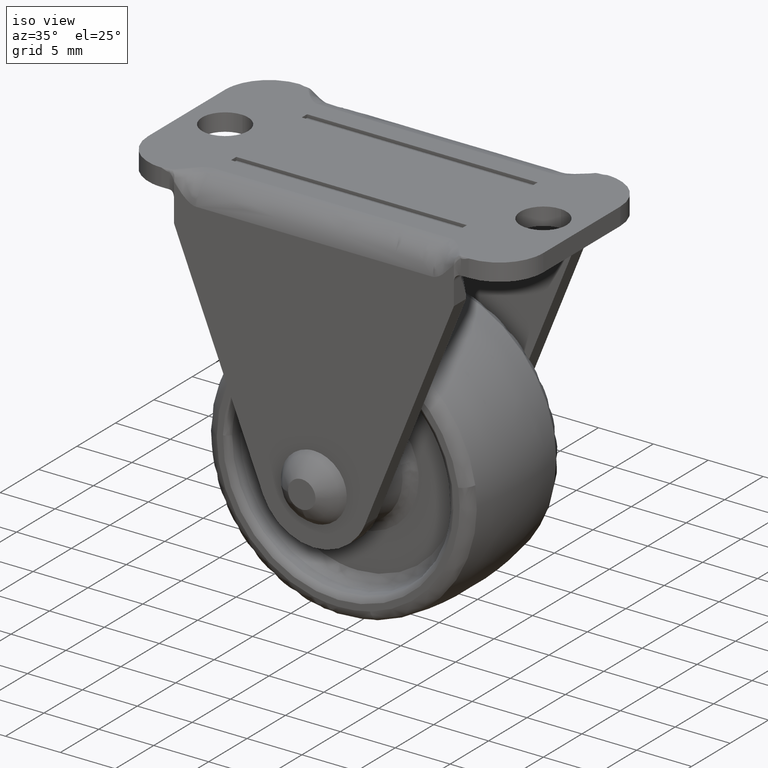
[diagram: clean part render]
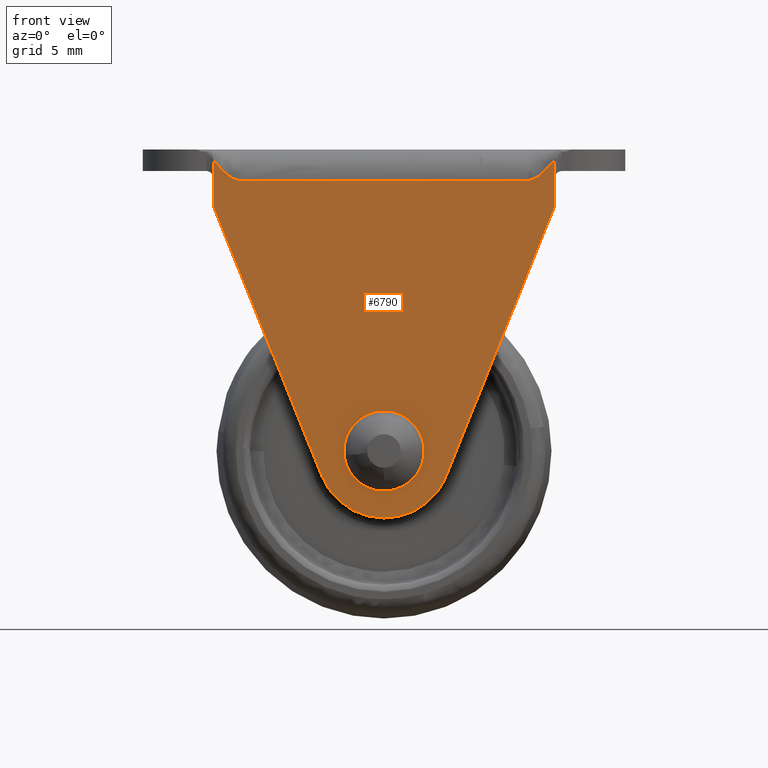
[diagram: tour spotlight — one face highlighted and labeled with its STEP entity id]
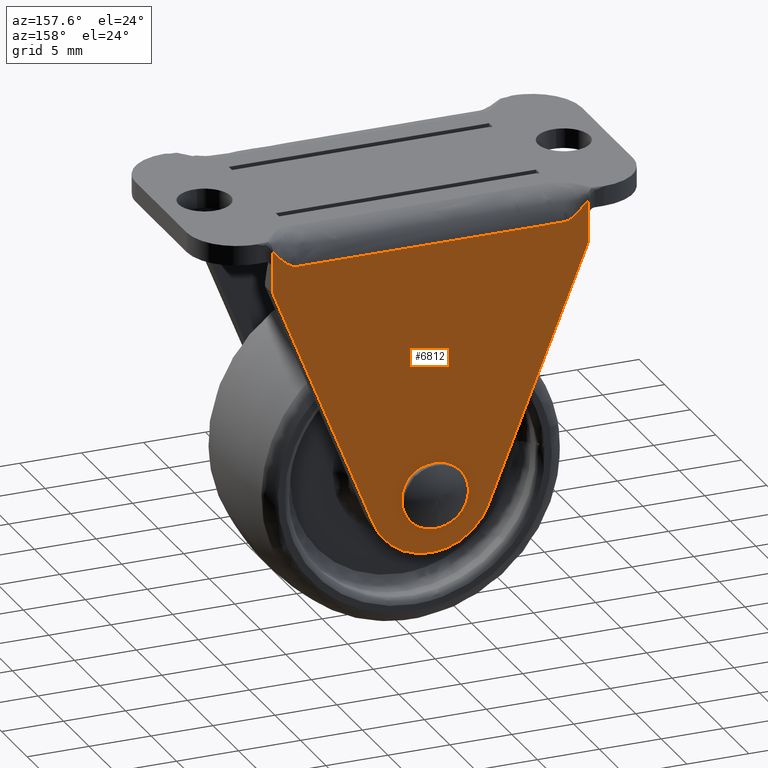
[diagram: tour spotlight — one face highlighted and labeled with its STEP entity id]
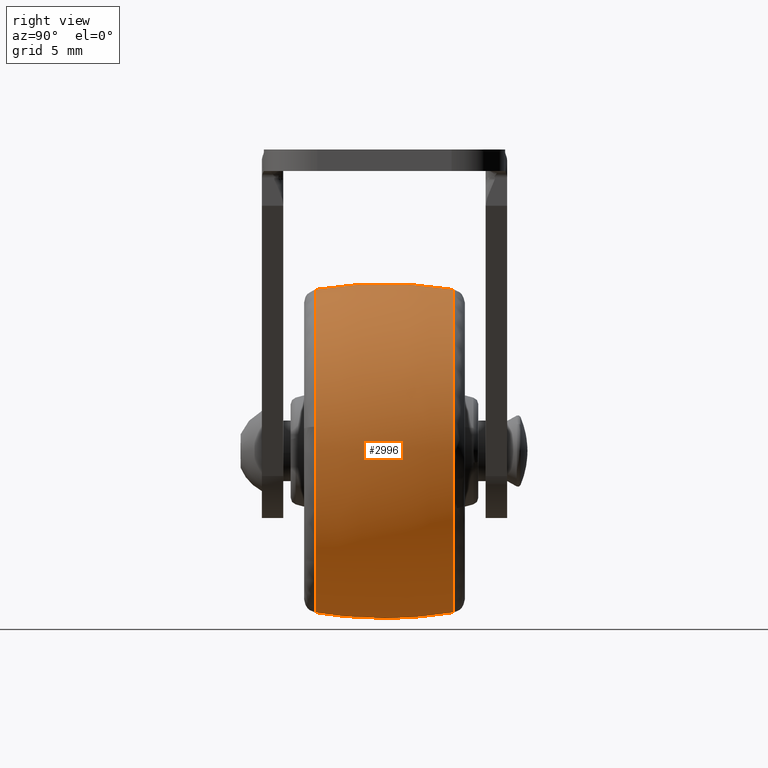
[diagram: tour spotlight — one face highlighted and labeled with its STEP entity id]
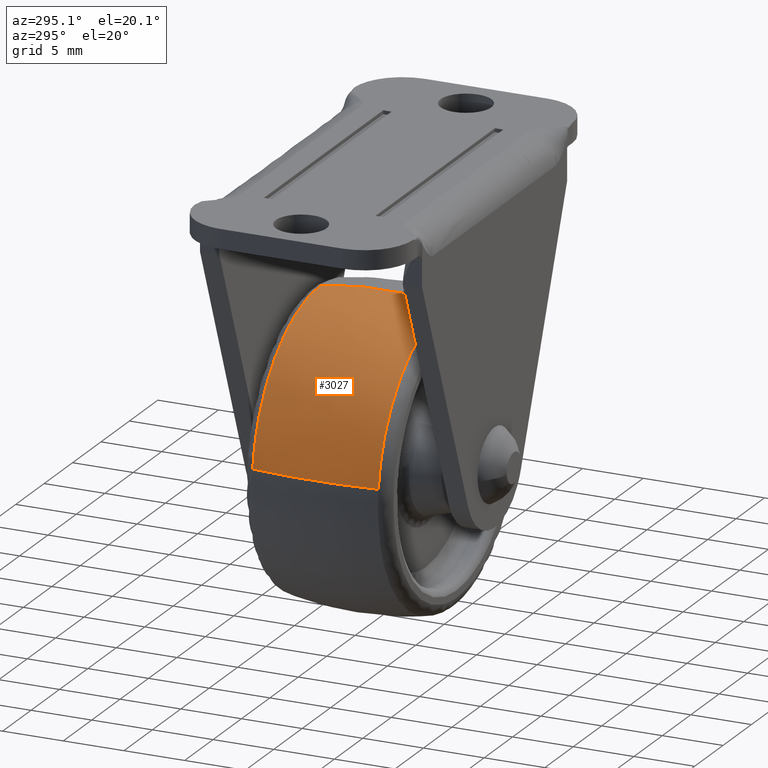
[diagram: tour spotlight — one face highlighted and labeled with its STEP entity id]
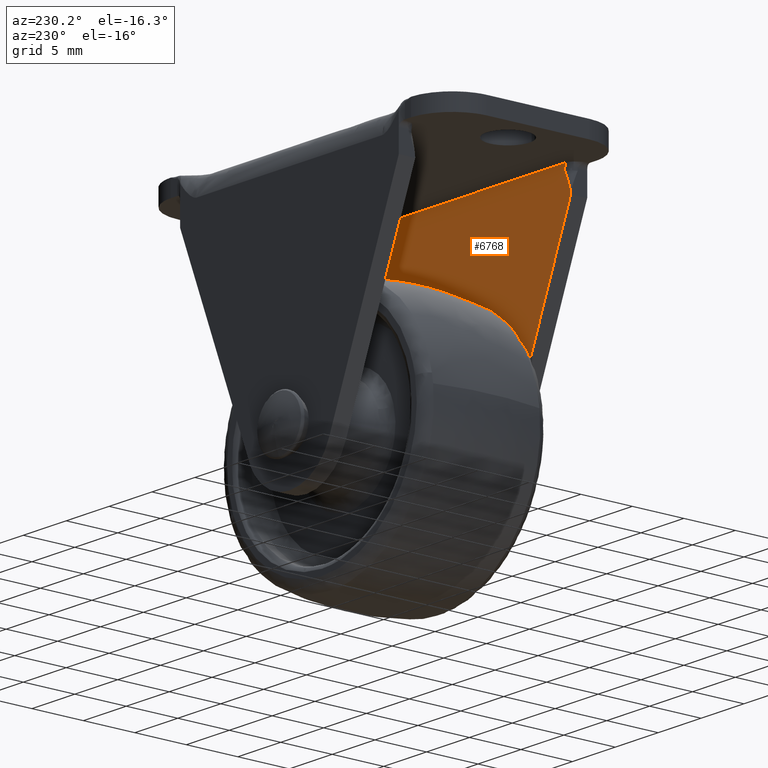
[diagram: tour spotlight — one face highlighted and labeled with its STEP entity id]
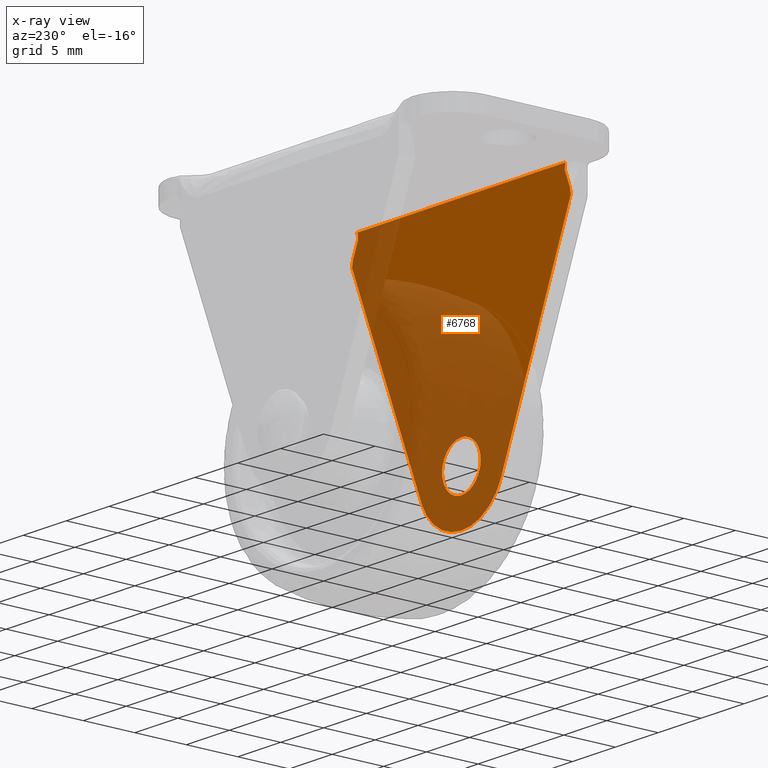
[diagram: x-ray of the same camera — body ghosted, this tour face saturated]
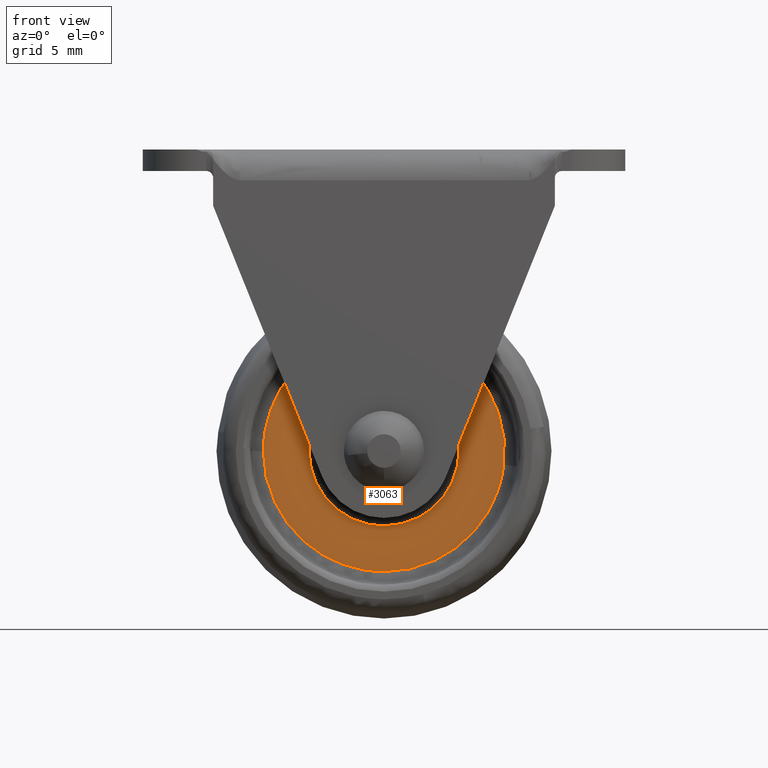
[diagram: tour spotlight — one face highlighted and labeled with its STEP entity id]
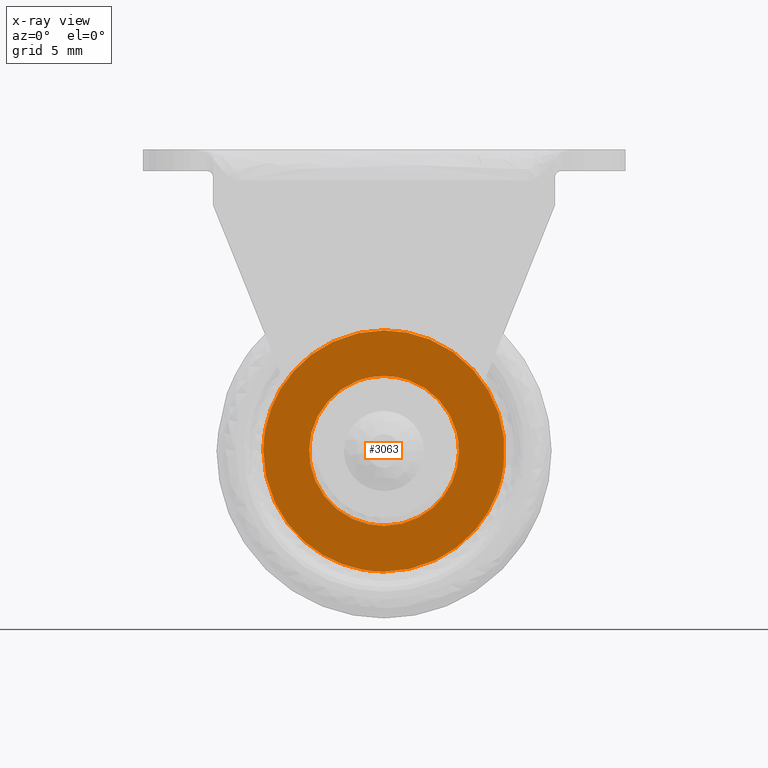
[diagram: x-ray of the same camera — body ghosted, this tour face saturated]
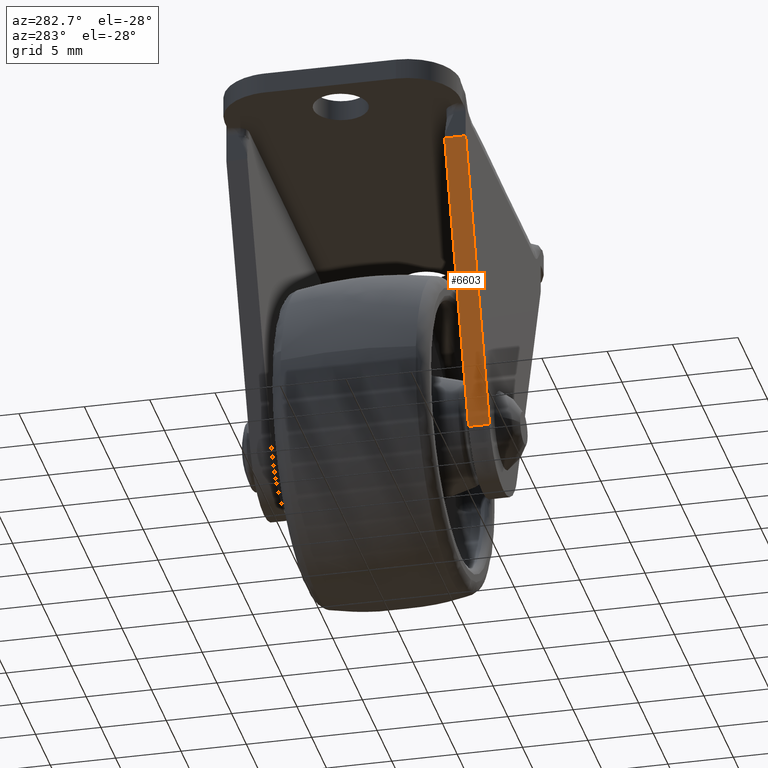
[diagram: tour spotlight — one face highlighted and labeled with its STEP entity id]
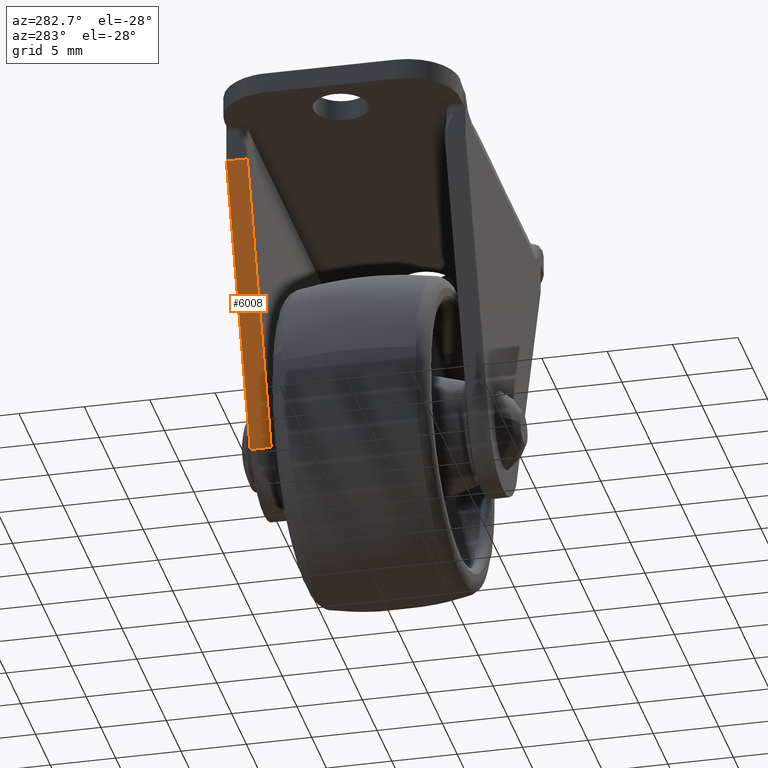
[diagram: tour spotlight — one face highlighted and labeled with its STEP entity id]
A machine part: a face-by-face anatomy tour. The part has 122 B-rep faces; the first image is the clean iso view, then the 8 largest visible faces are spotlighted one at a time (largest first), each with its STEP entity span.

Face 1 — front view, entity #6790. In plain terms, the highlighted face is a freeform B-spline surface patch.
Definition (entity closure, byte-faithful):
#3601=CARTESIAN_POINT('',(-2.249914326893559,-9.150000000000102,0.019634704966010));
#3602=VERTEX_POINT('',#3601);
#3608=CARTESIAN_POINT('',(0.0,-9.150000000000102,-2.250000000000000));
#3609=VERTEX_POINT('',#3608);
#3610=CARTESIAN_POINT('',(-2.249914326893559,-9.150000000000102,0.019634704966010));
#3611=CARTESIAN_POINT('',(-2.250000000000000,-9.150000000000103,0.009817539441253));
#3612=CARTESIAN_POINT('',(-2.250000000000000,-9.150000000000102,0.0));
#3613=CARTESIAN_POINT('',(-2.250000000000000,-9.150000000000103,-2.250000000000000));
#3614=CARTESIAN_POINT('',(0.0,-9.150000000000102,-2.250000000000000));
#3622=(BOUNDED_CURVE()B_SPLINE_CURVE(2,(#3610,#3611,#3612,#3613,#3614),.UNSPECIFIED.,.F.,.U.)B_SPLINE_CURVE_WITH_KNOTS((3,2,3),(0.248460105650190,0.250000000000000,0.500000000000000),.UNSPECIFIED.)CURVE()GEOMETRIC_REPRESENTATION_ITEM()RATIONAL_B_SPLINE_CURVE((0.996414028066101,0.998195901549006,1.0,0.707106781186547,1.0))REPRESENTATION_ITEM(''));
#3623=EDGE_CURVE('',#3602,#3609,#3622,.T.);
#3625=CARTESIAN_POINT('',(2.232599141551257,-9.150000000000102,-0.279286722102782));
#3626=VERTEX_POINT('',#3625);
#3627=CARTESIAN_POINT('',(0.0,-9.150000000000102,-2.250000000000000));
#3628=CARTESIAN_POINT('',(1.986073000183542,-9.150000000000102,-2.250000000000000));
#3629=CARTESIAN_POINT('',(2.232599141551258,-9.150000000000102,-0.279286722102782));
#3637=(BOUNDED_CURVE()B_SPLINE_CURVE(2,(#3627,#3628,#3629),.UNSPECIFIED.,.F.,.U.)B_SPLINE_CURVE_WITH_KNOTS((3,3),(0.500000000000000,0.728526167912513),.UNSPECIFIED.)CURVE()GEOMETRIC_REPRESENTATION_ITEM()RATIONAL_B_SPLINE_CURVE((1.0,0.732264940388002,0.954005618287669))REPRESENTATION_ITEM(''));
#3638=EDGE_CURVE('',#3609,#3626,#3637,.T.);
#3688=CARTESIAN_POINT('',(0.0,-9.150000000000102,2.250000000000000));
#3689=VERTEX_POINT('',#3688);
#3690=CARTESIAN_POINT('',(2.232599141551258,-9.150000000000102,-0.279286722102782));
#3691=CARTESIAN_POINT('',(2.250000000000000,-9.150000000000102,-0.140185438154938));
#3692=CARTESIAN_POINT('',(2.250000000000000,-9.150000000000102,0.0));
#3693=CARTESIAN_POINT('',(2.250000000000000,-9.150000000000103,2.250000000000000));
#3694=CARTESIAN_POINT('',(0.0,-9.150000000000102,2.250000000000000));
#3702=(BOUNDED_CURVE()B_SPLINE_CURVE(2,(#3690,#3691,#3692,#3693,#3694),.UNSPECIFIED.,.F.,.U.)B_SPLINE_CURVE_WITH_KNOTS((3,2,3),(0.728526167912513,0.750000000000000,1.0),.UNSPECIFIED.)CURVE()GEOMETRIC_REPRESENTATION_ITEM()RATIONAL_B_SPLINE_CURVE((0.954005618287669,0.974841840798545,1.0,0.707106781186547,1.0))REPRESENTATION_ITEM(''));
#3703=EDGE_CURVE('',#3626,#3689,#3702,.T.);
#3705=CARTESIAN_POINT('',(0.0,-9.150000000000102,2.250000000000000));
#3706=CARTESIAN_POINT('',(-2.230450223650995,-9.150000000000102,2.250000000000001));
#3707=CARTESIAN_POINT('',(-2.249914326893559,-9.150000000000102,0.019634704966010));
#3715=(BOUNDED_CURVE()B_SPLINE_CURVE(2,(#3705,#3706,#3707),.UNSPECIFIED.,.F.,.U.)B_SPLINE_CURVE_WITH_KNOTS((3,3),(0.0,0.248460105650190),.UNSPECIFIED.)CURVE()GEOMETRIC_REPRESENTATION_ITEM()RATIONAL_B_SPLINE_CURVE((1.0,0.708910879637542,0.996414028066101))REPRESENTATION_ITEM(''));
#3716=EDGE_CURVE('',#3689,#3602,#3715,.T.);
#4973=CARTESIAN_POINT('',(12.750010098916700,-9.149999999959778,21.700051119865051));
#4974=VERTEX_POINT('',#4973);
#5072=CARTESIAN_POINT('',(-12.750010098916800,-9.149999999959778,21.700051119865002));
#5073=VERTEX_POINT('',#5072);
#5091=CARTESIAN_POINT('',(12.750010098916700,-9.149999999959778,21.700051119865051));
#5092=CARTESIAN_POINT('',(12.083342904202070,-9.149999999959778,20.950051119865051));
#5093=CARTESIAN_POINT('',(11.416675709487430,-9.149999999959778,20.200051119865051));
#5094=CARTESIAN_POINT('',(10.750008514772899,-9.149999999959778,20.200051119865051));
#5095=CARTESIAN_POINT('',(3.583336171590839,-9.149999999959778,20.200051119865030));
#5096=CARTESIAN_POINT('',(-3.583336171591128,-9.149999999959778,20.200051119865019));
#5097=CARTESIAN_POINT('',(-10.750008514773000,-9.149999999959778,20.200051119865002));
#5098=CARTESIAN_POINT('',(-11.416675709487690,-9.149999999959778,20.200051119865002));
#5099=CARTESIAN_POINT('',(-12.083342904202290,-9.149999999959778,20.950051119865002));
#5100=CARTESIAN_POINT('',(-12.750010098916800,-9.149999999959778,21.700051119865002));
#5101=B_SPLINE_CURVE_WITH_KNOTS('',3,(#5091,#5092,#5093,#5094,#5095,#5096,#5097,#5098,#5099,#5100),.UNSPECIFIED.,.F.,.U.,(4,3,3,4),(0.026413536937680,0.100701609574911,0.899298390425092,0.973586463062318),.UNSPECIFIED.);
#5102=EDGE_CURVE('',#4974,#5073,#5101,.T.);
#5255=CARTESIAN_POINT('',(-12.750000000000000,-9.150000000000000,20.399999999999750));
#5256=VERTEX_POINT('',#5255);
#5412=CARTESIAN_POINT('',(12.750000000000000,-9.150000000000000,20.399999999999750));
#5413=VERTEX_POINT('',#5412);
#5901=CARTESIAN_POINT('',(-12.750000000000000,-9.150000000000000,20.399999999999750));
#5902=CARTESIAN_POINT('',(-12.750010098916800,-9.149999999959778,21.700051119865002));
#5903=QUASI_UNIFORM_CURVE('',1,(#5901,#5902),.UNSPECIFIED.,.F.,.U.);
#5904=EDGE_CURVE('',#5256,#5073,#5903,.T.);
#5953=CARTESIAN_POINT('',(12.750000000000000,-9.150000000000000,20.399999999999750));
#5954=CARTESIAN_POINT('',(12.750010098916700,-9.149999999959778,21.700051119865051));
#5955=QUASI_UNIFORM_CURVE('',1,(#5953,#5954),.UNSPECIFIED.,.F.,.U.);
#5956=EDGE_CURVE('',#5413,#4974,#5955,.T.);
#6582=CARTESIAN_POINT('',(-4.638816999999900,-9.150002000000001,-1.865843000000100));
#6583=VERTEX_POINT('',#6582);
#6589=CARTESIAN_POINT('',(-12.750000000000000,-9.150002000000001,18.299998999999900));
#6590=VERTEX_POINT('',#6589);
#6591=CARTESIAN_POINT('',(-12.750000000000000,-9.150002000000001,18.299998999999900));
#6592=CARTESIAN_POINT('',(-4.638816999999900,-9.150002000000001,-1.865843000000100));
#6593=QUASI_UNIFORM_CURVE('',1,(#6591,#6592),.UNSPECIFIED.,.F.,.U.);
#6594=EDGE_CURVE('',#6590,#6583,#6593,.T.);
#6616=CARTESIAN_POINT('',(12.750000000000000,-9.150002000000001,18.300030347964199));
#6617=VERTEX_POINT('',#6616);
#6623=CARTESIAN_POINT('',(4.638809000000090,-9.150002000000001,-1.865839000000000));
#6624=VERTEX_POINT('',#6623);
#6625=CARTESIAN_POINT('',(4.638809000000090,-9.150002000000001,-1.865839000000000));
#6626=CARTESIAN_POINT('',(12.750000000000000,-9.150002000000001,18.300030347964199));
#6627=QUASI_UNIFORM_CURVE('',1,(#6625,#6626),.UNSPECIFIED.,.F.,.U.);
#6628=EDGE_CURVE('',#6624,#6617,#6627,.T.);
#6674=CARTESIAN_POINT('',(-4.638816999999900,-9.150002000000001,-1.865843000000100));
#6675=CARTESIAN_POINT('',(-3.378185488561204,-9.150002000000001,-4.999999541616815));
#6676=CARTESIAN_POINT('',(-0.000003772552102,-9.150002000000001,-4.999998085131375));
#6677=CARTESIAN_POINT('',(3.378177943457001,-9.150002000000001,-4.999996628645934));
#6678=CARTESIAN_POINT('',(4.638809000000090,-9.150002000000001,-1.865839000000000));
#6686=(BOUNDED_CURVE()B_SPLINE_CURVE(2,(#6674,#6675,#6676,#6677,#6678),.UNSPECIFIED.,.F.,.U.)B_SPLINE_CURVE_WITH_KNOTS((3,2,3),(0.0,0.500000000000000,1.0),.UNSPECIFIED.)CURVE()GEOMETRIC_REPRESENTATION_ITEM()RATIONAL_B_SPLINE_CURVE((1.0,0.828603820584281,1.0,0.828603820584281,1.0))REPRESENTATION_ITEM(''));
#6687=EDGE_CURVE('',#6583,#6624,#6686,.T.);
#6701=CARTESIAN_POINT('',(-12.750000000000000,-9.150002000000001,18.299998999999900));
#6702=CARTESIAN_POINT('',(-12.750000000000000,-9.150000000000000,20.399999999999750));
#6703=QUASI_UNIFORM_CURVE('',1,(#6701,#6702),.UNSPECIFIED.,.F.,.U.);
#6704=EDGE_CURVE('',#6590,#5256,#6703,.T.);
#6717=CARTESIAN_POINT('',(12.750000000000000,-9.150002000000001,18.300030347964199));
#6718=CARTESIAN_POINT('',(12.750000000000000,-9.150000000000000,20.399999999999750));
#6719=QUASI_UNIFORM_CURVE('',1,(#6717,#6718),.UNSPECIFIED.,.F.,.U.);
#6720=EDGE_CURVE('',#6617,#5413,#6719,.T.);
#6769=CARTESIAN_POINT('',(-14.023736537126490,-9.150000000000000,-6.333665395779088));
#6770=CARTESIAN_POINT('',(-14.023736537126490,-9.150000000000000,23.033717236928180));
#6771=CARTESIAN_POINT('',(14.023736765114331,-9.150000000000000,-6.333665395779088));
#6772=CARTESIAN_POINT('',(14.023736765114331,-9.150000000000000,23.033717236928180));
#6773=B_SPLINE_SURFACE_WITH_KNOTS('',1,1,((#6769,#6771),(#6770,#6772)),.UNSPECIFIED.,.F.,.F.,.U.,(2,2),(2,2),(0.0,29.367382632707258),(0.0,28.047473302240821),.UNSPECIFIED.);
#6774=ORIENTED_EDGE('',*,*,#5956,.T.);
#6775=ORIENTED_EDGE('',*,*,#5102,.T.);
#6776=ORIENTED_EDGE('',*,*,#5904,.F.);
#6777=ORIENTED_EDGE('',*,*,#6704,.F.);
#6778=ORIENTED_EDGE('',*,*,#6594,.T.);
#6779=ORIENTED_EDGE('',*,*,#6687,.T.);
#6780=ORIENTED_EDGE('',*,*,#6628,.T.);
#6781=ORIENTED_EDGE('',*,*,#6720,.T.);
#6782=EDGE_LOOP('',(#6774,#6775,#6776,#6777,#6778,#6779,#6780,#6781));
#6783=FACE_OUTER_BOUND('',#6782,.T.);
#6784=ORIENTED_EDGE('',*,*,#3716,.F.);
#6785=ORIENTED_EDGE('',*,*,#3703,.F.);
#6786=ORIENTED_EDGE('',*,*,#3638,.F.);
#6787=ORIENTED_EDGE('',*,*,#3623,.F.);
#6788=EDGE_LOOP('',(#6784,#6785,#6786,#6787));
#6789=FACE_BOUND('',#6788,.T.);
#6790=ADVANCED_FACE('',(#6783,#6789),#6773,.F.);

Face 2 — auxiliary view, entity #6812. In plain terms, the highlighted face is a freeform B-spline surface patch.
Definition (entity closure, byte-faithful):
#3774=CARTESIAN_POINT('',(-2.243064279794250,9.150000000000102,0.176529421622751));
#3775=VERTEX_POINT('',#3774);
#3781=CARTESIAN_POINT('',(0.0,9.150000000000102,2.250000000000000));
#3782=VERTEX_POINT('',#3781);
#3783=CARTESIAN_POINT('',(0.0,9.150000000000102,2.250000000000000));
#3784=CARTESIAN_POINT('',(-2.079881902345851,9.150000000000102,2.250000000000000));
#3785=CARTESIAN_POINT('',(-2.243064279794250,9.150000000000102,0.176529421622751));
#3793=(BOUNDED_CURVE()B_SPLINE_CURVE(2,(#3783,#3784,#3785),.UNSPECIFIED.,.F.,.U.)B_SPLINE_CURVE_WITH_KNOTS((3,3),(0.0,0.236331571462397),.UNSPECIFIED.)CURVE()GEOMETRIC_REPRESENTATION_ITEM()RATIONAL_B_SPLINE_CURVE((1.0,0.723120341308549,0.969723921373279))REPRESENTATION_ITEM(''));
#3794=EDGE_CURVE('',#3782,#3775,#3793,.T.);
#3796=CARTESIAN_POINT('',(2.243064279794250,9.150000000000102,-0.176529421622750));
#3797=VERTEX_POINT('',#3796);
#3798=CARTESIAN_POINT('',(2.243064279794250,9.150000000000102,-0.176529421622750));
#3799=CARTESIAN_POINT('',(2.250000000000000,9.150000000000102,-0.088400960662335));
#3800=CARTESIAN_POINT('',(2.250000000000000,9.150000000000102,0.0));
#3801=CARTESIAN_POINT('',(2.250000000000000,9.150000000000103,2.250000000000000));
#3802=CARTESIAN_POINT('',(0.0,9.150000000000102,2.250000000000000));
#3810=(BOUNDED_CURVE()B_SPLINE_CURVE(2,(#3798,#3799,#3800,#3801,#3802),.UNSPECIFIED.,.F.,.U.)B_SPLINE_CURVE_WITH_KNOTS((3,2,3),(0.736331571462397,0.750000000000000,1.0),.UNSPECIFIED.)CURVE()GEOMETRIC_REPRESENTATION_ITEM()RATIONAL_B_SPLINE_CURVE((0.969723921373279,0.983986439877999,1.0,0.707106781186547,1.0))REPRESENTATION_ITEM(''));
#3811=EDGE_CURVE('',#3797,#3782,#3810,.T.);
#3891=CARTESIAN_POINT('',(0.0,9.150000000000102,-2.250000000000000));
#3892=VERTEX_POINT('',#3891);
#3893=CARTESIAN_POINT('',(0.0,9.150000000000102,-2.250000000000000));
#3894=CARTESIAN_POINT('',(2.079881902345851,9.150000000000102,-2.250000000000000));
#3895=CARTESIAN_POINT('',(2.243064279794250,9.150000000000102,-0.176529421622750));
#3903=(BOUNDED_CURVE()B_SPLINE_CURVE(2,(#3893,#3894,#3895),.UNSPECIFIED.,.F.,.U.)B_SPLINE_CURVE_WITH_KNOTS((3,3),(0.500000000000000,0.736331571462397),.UNSPECIFIED.)CURVE()GEOMETRIC_REPRESENTATION_ITEM()RATIONAL_B_SPLINE_CURVE((1.0,0.723120341308549,0.969723921373279))REPRESENTATION_ITEM(''));
#3904=EDGE_CURVE('',#3892,#3797,#3903,.T.);
#3906=CARTESIAN_POINT('',(-2.243064279794250,9.150000000000102,0.176529421622751));
#3907=CARTESIAN_POINT('',(-2.250000000000000,9.150000000000102,0.088400960662336));
#3908=CARTESIAN_POINT('',(-2.250000000000000,9.150000000000102,0.0));
#3909=CARTESIAN_POINT('',(-2.250000000000000,9.150000000000103,-2.250000000000000));
#3910=CARTESIAN_POINT('',(0.0,9.150000000000102,-2.250000000000000));
#3918=(BOUNDED_CURVE()B_SPLINE_CURVE(2,(#3906,#3907,#3908,#3909,#3910),.UNSPECIFIED.,.F.,.U.)B_SPLINE_CURVE_WITH_KNOTS((3,2,3),(0.236331571462397,0.250000000000000,0.500000000000000),.UNSPECIFIED.)CURVE()GEOMETRIC_REPRESENTATION_ITEM()RATIONAL_B_SPLINE_CURVE((0.969723921373279,0.983986439877999,1.0,0.707106781186547,1.0))REPRESENTATION_ITEM(''));
#3919=EDGE_CURVE('',#3775,#3892,#3918,.T.);
#5302=CARTESIAN_POINT('',(-12.750000000000000,9.150000000000000,20.399999999999750));
#5303=VERTEX_POINT('',#5302);
#5365=CARTESIAN_POINT('',(12.750000000000000,9.150000000000000,20.399999999999750));
#5366=VERTEX_POINT('',#5365);
#5539=CARTESIAN_POINT('',(-12.750010098916800,9.149999999959778,21.700051119865101));
#5540=VERTEX_POINT('',#5539);
#5638=CARTESIAN_POINT('',(12.750010098916800,9.149999999959778,21.700051119670849));
#5639=VERTEX_POINT('',#5638);
#5657=CARTESIAN_POINT('',(-12.750010098916800,9.149999999959778,21.700051119865101));
#5658=CARTESIAN_POINT('',(-12.083342904202260,9.149999999959778,20.950051119860021));
#5659=CARTESIAN_POINT('',(-11.416675709487629,9.149999999959778,20.200051119854940));
#5660=CARTESIAN_POINT('',(-10.750008514772990,9.149999999959778,20.200051119849860));
#5661=CARTESIAN_POINT('',(-3.583336171590998,9.149999999959778,20.200051119795269));
#5662=CARTESIAN_POINT('',(3.583336171590993,9.149999999959778,20.200051119740671));
#5663=CARTESIAN_POINT('',(10.750008514772990,9.149999999959778,20.200051119686080));
#5664=CARTESIAN_POINT('',(11.416675709487590,9.149999999959778,20.200051119681000));
#5665=CARTESIAN_POINT('',(12.083342904202180,9.149999999959778,20.950051119675919));
#5666=CARTESIAN_POINT('',(12.750010098916800,9.149999999959778,21.700051119670849));
#5667=B_SPLINE_CURVE_WITH_KNOTS('',3,(#5657,#5658,#5659,#5660,#5661,#5662,#5663,#5664,#5665,#5666),.UNSPECIFIED.,.F.,.U.,(4,3,3,4),(0.026413536937680,0.100701609574911,0.899298390425092,0.973586463062318),.UNSPECIFIED.);
#5668=EDGE_CURVE('',#5540,#5639,#5667,.T.);
#5821=CARTESIAN_POINT('',(-12.750000000000000,9.150000000000000,20.399999999999750));
#5822=CARTESIAN_POINT('',(-12.750010098916800,9.149999999959778,21.700051119865101));
#5823=QUASI_UNIFORM_CURVE('',1,(#5821,#5822),.UNSPECIFIED.,.F.,.U.);
#5824=EDGE_CURVE('',#5303,#5540,#5823,.T.);
#5857=CARTESIAN_POINT('',(12.750000000000000,9.150000000000000,20.399999999999750));
#5858=CARTESIAN_POINT('',(12.750010098916800,9.149999999959778,21.700051119670849));
#5859=QUASI_UNIFORM_CURVE('',1,(#5857,#5858),.UNSPECIFIED.,.F.,.U.);
#5860=EDGE_CURVE('',#5366,#5639,#5859,.T.);
#5987=CARTESIAN_POINT('',(-12.750000000000000,9.150002000000001,18.299998999999900));
#5988=VERTEX_POINT('',#5987);
#5994=CARTESIAN_POINT('',(-4.638816999999900,9.150002000000001,-1.865843000000100));
#5995=VERTEX_POINT('',#5994);
#5996=CARTESIAN_POINT('',(-12.750000000000000,9.150002000000001,18.299998999999900));
#5997=CARTESIAN_POINT('',(-4.638816999999900,9.150002000000001,-1.865843000000100));
#5998=QUASI_UNIFORM_CURVE('',1,(#5996,#5997),.UNSPECIFIED.,.F.,.U.);
#5999=EDGE_CURVE('',#5988,#5995,#5998,.T.);
#6021=CARTESIAN_POINT('',(4.638809000000090,9.150002000000001,-1.865839000000000));
#6022=VERTEX_POINT('',#6021);
#6030=CARTESIAN_POINT('',(12.750000000000000,9.150002000000001,18.300030347964199));
#6031=VERTEX_POINT('',#6030);
#6032=CARTESIAN_POINT('',(4.638809000000090,9.150002000000001,-1.865839000000000));
#6033=CARTESIAN_POINT('',(12.750000000000000,9.150002000000001,18.300030347964199));
#6034=QUASI_UNIFORM_CURVE('',1,(#6032,#6033),.UNSPECIFIED.,.F.,.U.);
#6035=EDGE_CURVE('',#6022,#6031,#6034,.T.);
#6079=CARTESIAN_POINT('',(-4.638816999999900,9.150002000000001,-1.865843000000100));
#6080=CARTESIAN_POINT('',(-3.378185488561204,9.150002000000001,-4.999999541616815));
#6081=CARTESIAN_POINT('',(-0.000003772552102,9.150002000000001,-4.999998085131375));
#6082=CARTESIAN_POINT('',(3.378177943457001,9.150002000000001,-4.999996628645934));
#6083=CARTESIAN_POINT('',(4.638809000000090,9.150002000000001,-1.865839000000000));
#6091=(BOUNDED_CURVE()B_SPLINE_CURVE(2,(#6079,#6080,#6081,#6082,#6083),.UNSPECIFIED.,.F.,.U.)B_SPLINE_CURVE_WITH_KNOTS((3,2,3),(0.0,0.500000000000000,1.0),.UNSPECIFIED.)CURVE()GEOMETRIC_REPRESENTATION_ITEM()RATIONAL_B_SPLINE_CURVE((1.0,0.828603820584281,1.0,0.828603820584281,1.0))REPRESENTATION_ITEM(''));
#6092=EDGE_CURVE('',#5995,#6022,#6091,.T.);
#6452=CARTESIAN_POINT('',(-12.750000000000000,9.150002000000001,18.299998999999900));
#6453=CARTESIAN_POINT('',(-12.750000000000000,9.150000000000000,20.399999999999750));
#6454=QUASI_UNIFORM_CURVE('',1,(#6452,#6453),.UNSPECIFIED.,.F.,.U.);
#6455=EDGE_CURVE('',#5988,#5303,#6454,.T.);
#6468=CARTESIAN_POINT('',(12.750000000000000,9.150002000000001,18.300030347964199));
#6469=CARTESIAN_POINT('',(12.750000000000000,9.150000000000000,20.399999999999750));
#6470=QUASI_UNIFORM_CURVE('',1,(#6468,#6469),.UNSPECIFIED.,.F.,.U.);
#6471=EDGE_CURVE('',#6031,#5366,#6470,.T.);
#6791=CARTESIAN_POINT('',(-14.023736537126490,9.150000000000000,23.033717773981891));
#6792=CARTESIAN_POINT('',(-14.023736537126490,9.150000000000000,-6.333666171549801));
#6793=CARTESIAN_POINT('',(14.023736765114441,9.150000000000000,23.033717773981891));
#6794=CARTESIAN_POINT('',(14.023736765114441,9.150000000000000,-6.333666171549801));
#6795=B_SPLINE_SURFACE_WITH_KNOTS('',1,1,((#6791,#6793),(#6792,#6794)),.UNSPECIFIED.,.F.,.F.,.U.,(2,2),(2,2),(0.0,29.367383945531689),(0.0,28.047473302240920),.UNSPECIFIED.);
#6796=ORIENTED_EDGE('',*,*,#5824,.T.);
#6797=ORIENTED_EDGE('',*,*,#5668,.T.);
#6798=ORIENTED_EDGE('',*,*,#5860,.F.);
#6799=ORIENTED_EDGE('',*,*,#6471,.F.);
#6800=ORIENTED_EDGE('',*,*,#6035,.F.);
#6801=ORIENTED_EDGE('',*,*,#6092,.F.);
#6802=ORIENTED_EDGE('',*,*,#5999,.F.);
#6803=ORIENTED_EDGE('',*,*,#6455,.T.);
#6804=EDGE_LOOP('',(#6796,#6797,#6798,#6799,#6800,#6801,#6802,#6803));
#6805=FACE_OUTER_BOUND('',#6804,.T.);
#6806=ORIENTED_EDGE('',*,*,#3904,.T.);
#6807=ORIENTED_EDGE('',*,*,#3811,.T.);
#6808=ORIENTED_EDGE('',*,*,#3794,.T.);
#6809=ORIENTED_EDGE('',*,*,#3919,.T.);
#6810=EDGE_LOOP('',(#6806,#6807,#6808,#6809));
#6811=FACE_BOUND('',#6810,.T.);
#6812=ADVANCED_FACE('',(#6805,#6811),#6795,.F.);

Face 3 — right view, entity #2996. In plain terms, the highlighted face is a freeform B-spline surface patch.
Definition (entity closure, byte-faithful):
#2524=CARTESIAN_POINT('',(0.0,5.172406266732837,12.050739642381380));
#2525=VERTEX_POINT('',#2524);
#2539=CARTESIAN_POINT('',(11.261469757784759,5.172411408221732,-4.289475456486795));
#2540=VERTEX_POINT('',#2539);
#2541=CARTESIAN_POINT('',(11.261469757784756,5.172411408221734,-4.289475456486795));
#2542=CARTESIAN_POINT('',(12.050738333794744,5.172410692620763,-2.217350575370395));
#2543=CARTESIAN_POINT('',(12.050738333794740,5.172410004809859,0.000000654293321));
#2544=CARTESIAN_POINT('',(12.050738333794744,5.172406266732837,12.050739642381387));
#2545=CARTESIAN_POINT('',(0.0,5.172406266732837,12.050739642381380));
#2553=(BOUNDED_CURVE()B_SPLINE_CURVE(2,(#2541,#2542,#2543,#2544,#2545),.UNSPECIFIED.,.F.,.U.)B_SPLINE_CURVE_WITH_KNOTS((3,2,3),(0.189552764179595,0.250000000000000,0.500000000000000),.UNSPECIFIED.)CURVE()GEOMETRIC_REPRESENTATION_ITEM()RATIONAL_B_SPLINE_CURVE((0.892609500349501,0.929181658128743,1.0,0.707106781186548,1.0))REPRESENTATION_ITEM(''));
#2554=EDGE_CURVE('',#2540,#2525,#2553,.T.);
#2611=CARTESIAN_POINT('',(0.0,5.172413742886881,-12.050738333794740));
#2612=VERTEX_POINT('',#2611);
#2613=CARTESIAN_POINT('',(0.0,5.172413742886881,-12.050738333794740));
#2614=CARTESIAN_POINT('',(8.305216816198701,5.172413742886880,-12.050738333794742));
#2615=CARTESIAN_POINT('',(11.261469757784756,5.172411408221734,-4.289475456486795));
#2623=(BOUNDED_CURVE()B_SPLINE_CURVE(2,(#2613,#2614,#2615),.UNSPECIFIED.,.F.,.U.)B_SPLINE_CURVE_WITH_KNOTS((3,3),(0.0,0.189552764179595),.UNSPECIFIED.)CURVE()GEOMETRIC_REPRESENTATION_ITEM()RATIONAL_B_SPLINE_CURVE((1.0,0.777925123057805,0.892609500349501))REPRESENTATION_ITEM(''));
#2624=EDGE_CURVE('',#2612,#2540,#2623,.T.);
#2626=CARTESIAN_POINT('',(-11.970140016315360,5.172407741140701,1.391426497640320));
#2627=VERTEX_POINT('',#2626);
#2628=CARTESIAN_POINT('',(-11.970140016315366,5.172407741140701,1.391426497640319));
#2629=CARTESIAN_POINT('',(-12.050739350369765,5.172407895932865,0.698047693950764));
#2630=CARTESIAN_POINT('',(-12.050739320147381,5.172408069760571,0.000000114655065));
#2631=CARTESIAN_POINT('',(-12.050738798403476,5.172411070633660,-12.050738279787948));
#2632=CARTESIAN_POINT('',(0.0,5.172413742886881,-12.050738333794740));
#2640=(BOUNDED_CURVE()B_SPLINE_CURVE(2,(#2628,#2629,#2630,#2631,#2632),.UNSPECIFIED.,.F.,.U.)B_SPLINE_CURVE_WITH_KNOTS((3,2,3),(0.730000040107683,0.750000000000000,1.0),.UNSPECIFIED.)CURVE()GEOMETRIC_REPRESENTATION_ITEM()RATIONAL_B_SPLINE_CURVE((0.956886197132318,0.976568589483997,1.0,0.707106781186548,1.0))REPRESENTATION_ITEM(''));
#2641=EDGE_CURVE('',#2627,#2612,#2640,.T.);
#2711=CARTESIAN_POINT('',(3.173860086600194,-5.172413705450480,-11.625270314224730));
#2712=VERTEX_POINT('',#2711);
#2726=CARTESIAN_POINT('',(11.913983818060791,-5.172411719203666,1.810329317044721));
#2727=VERTEX_POINT('',#2726);
#2728=CARTESIAN_POINT('',(3.173860086600194,-5.172413705450480,-11.625270314224734));
#2729=CARTESIAN_POINT('',(12.050738333794760,-5.172413316548128,-9.201759177654335));
#2730=CARTESIAN_POINT('',(12.050738333794760,-5.172411939540858,0.000000315648178));
#2731=CARTESIAN_POINT('',(12.050738333794765,-5.172411803313568,0.910330120151583));
#2732=CARTESIAN_POINT('',(11.913983818060780,-5.172411719203666,1.810329317044721));
#2740=(BOUNDED_CURVE()B_SPLINE_CURVE(2,(#2728,#2729,#2730,#2731,#2732),.UNSPECIFIED.,.F.,.U.)B_SPLINE_CURVE_WITH_KNOTS((3,2,3),(0.044901926711241,0.250000000000000,0.275897579644457),.UNSPECIFIED.)CURVE()GEOMETRIC_REPRESENTATION_ITEM()RATIONAL_B_SPLINE_CURVE((0.913685083961508,0.759712660568072,1.0,0.969659098153829,0.945604243684025))REPRESENTATION_ITEM(''));
#2741=EDGE_CURVE('',#2712,#2727,#2740,.T.);
#2840=CARTESIAN_POINT('',(0.0,-5.172410136195015,12.050738965091121));
#2841=VERTEX_POINT('',#2840);
#2842=CARTESIAN_POINT('',(11.913983818060780,-5.172411719203666,1.810329317044721));
#2843=CARTESIAN_POINT('',(10.357954083714681,-5.172410136195015,12.050738965091117));
#2844=CARTESIAN_POINT('',(0.0,-5.172410136195015,12.050738965091121));
#2852=(BOUNDED_CURVE()B_SPLINE_CURVE(2,(#2842,#2843,#2844),.UNSPECIFIED.,.F.,.U.)B_SPLINE_CURVE_WITH_KNOTS((3,3),(0.275897579644457,0.500000000000000),.UNSPECIFIED.)CURVE()GEOMETRIC_REPRESENTATION_ITEM()RATIONAL_B_SPLINE_CURVE((0.945604243684025,0.737447683032718,1.0))REPRESENTATION_ITEM(''));
#2853=EDGE_CURVE('',#2727,#2841,#2852,.T.);
#2855=CARTESIAN_POINT('',(-11.970139971412030,-5.172408003172473,1.391426486713733));
#2856=VERTEX_POINT('',#2855);
#2870=CARTESIAN_POINT('',(0.0,-5.172413742886701,-12.050738333794760));
#2871=VERTEX_POINT('',#2870);
#2872=CARTESIAN_POINT('',(-11.970139971412024,-5.172408003172473,1.391426486713734));
#2873=CARTESIAN_POINT('',(-12.050739305986884,-5.172408151206522,0.698047685947731));
#2874=CARTESIAN_POINT('',(-12.050739277083981,-5.172408317445032,0.000000109649316));
#2875=CARTESIAN_POINT('',(-12.050738778119024,-5.172411187302147,-12.050738282145861));
#2876=CARTESIAN_POINT('',(0.0,-5.172413742886701,-12.050738333794760));
#2884=(BOUNDED_CURVE()B_SPLINE_CURVE(2,(#2872,#2873,#2874,#2875,#2876),.UNSPECIFIED.,.F.,.U.)B_SPLINE_CURVE_WITH_KNOTS((3,2,3),(0.730000040187255,0.750000000000000,1.0),.UNSPECIFIED.)CURVE()GEOMETRIC_REPRESENTATION_ITEM()RATIONAL_B_SPLINE_CURVE((0.956886197288936,0.976568589577222,1.0,0.707106781186548,1.0))REPRESENTATION_ITEM(''));
#2885=EDGE_CURVE('',#2856,#2871,#2884,.T.);
#2887=CARTESIAN_POINT('',(0.0,-5.172413742886701,-12.050738333794760));
#2888=CARTESIAN_POINT('',(1.615447845165583,-5.172413742886701,-12.050738333794760));
#2889=CARTESIAN_POINT('',(3.173860086600194,-5.172413705450480,-11.625270314224734));
#2897=(BOUNDED_CURVE()B_SPLINE_CURVE(2,(#2887,#2888,#2889),.UNSPECIFIED.,.F.,.U.)B_SPLINE_CURVE_WITH_KNOTS((3,3),(0.0,0.044901926711241),.UNSPECIFIED.)CURVE()GEOMETRIC_REPRESENTATION_ITEM()RATIONAL_B_SPLINE_CURVE((1.0,0.947394120618476,0.913685083961508))REPRESENTATION_ITEM(''));
#2898=EDGE_CURVE('',#2871,#2712,#2897,.T.);
#2904=CARTESIAN_POINT('',(-11.875123599339135,-5.691929116740896,1.380384207878986));
#2905=CARTESIAN_POINT('',(-12.416395520413541,-2.872048334672701,1.443302560329737));
#2906=CARTESIAN_POINT('',(-12.416395520413539,0.0,1.443302560329736));
#2907=CARTESIAN_POINT('',(-12.416395520413539,2.872047480321515,1.443302560329736));
#2908=CARTESIAN_POINT('',(-11.875123918439916,5.691927454311647,1.380384244971794));
#2909=CARTESIAN_POINT('',(-11.955083481972968,-5.691929116740896,0.692507974692840));
#2910=CARTESIAN_POINT('',(-12.499999999999993,-2.872048334672701,0.724072709045769));
#2911=CARTESIAN_POINT('',(-12.499999999999995,0.0,0.724072709045769));
#2912=CARTESIAN_POINT('',(-12.499999999999998,2.872047480321515,0.724072709045769));
#2913=CARTESIAN_POINT('',(-11.955083803222374,5.691927454311647,0.692507993301474));
#2914=CARTESIAN_POINT('',(-11.955083481972970,-5.691929116740896,0.0));
#2915=CARTESIAN_POINT('',(-12.499999999999995,-2.872048334672701,0.0));
#2916=CARTESIAN_POINT('',(-12.500000000000000,0.0,0.0));
#2917=CARTESIAN_POINT('',(-12.499999999999993,2.872047480321516,0.0));
#2918=CARTESIAN_POINT('',(-11.955083803222374,5.691927454311647,0.0));
#2919=CARTESIAN_POINT('',(-11.955083481972972,-5.691929116740898,-11.955083481972972));
#2920=CARTESIAN_POINT('',(-12.499999999999996,-2.872048334672702,-12.499999999999996));
#2921=CARTESIAN_POINT('',(-12.499999999999996,0.0,-12.499999999999996));
#2922=CARTESIAN_POINT('',(-12.499999999999998,2.872047480321516,-12.499999999999998));
#2923=CARTESIAN_POINT('',(-11.955083803222374,5.691927454311646,-11.955083803222374));
#2924=CARTESIAN_POINT('',(0.0,-5.691929116740896,-11.955083481972970));
#2925=CARTESIAN_POINT('',(0.0,-2.872048334672701,-12.499999999999995));
#2926=CARTESIAN_POINT('',(0.0,0.0,-12.500000000000000));
#2927=CARTESIAN_POINT('',(0.0,2.872047480321516,-12.499999999999993));
#2928=CARTESIAN_POINT('',(0.0,5.691927454311647,-11.955083803222374));
#2929=CARTESIAN_POINT('',(11.955083481972972,-5.691929116740898,-11.955083481972972));
#2930=CARTESIAN_POINT('',(12.499999999999996,-2.872048334672702,-12.499999999999996));
#2931=CARTESIAN_POINT('',(12.499999999999996,0.0,-12.499999999999996));
#2932=CARTESIAN_POINT('',(12.499999999999998,2.872047480321516,-12.499999999999998));
#2933=CARTESIAN_POINT('',(11.955083803222374,5.691927454311646,-11.955083803222374));
#2934=CARTESIAN_POINT('',(11.955083481972970,-5.691929116740896,0.0));
#2935=CARTESIAN_POINT('',(12.499999999999995,-2.872048334672701,0.0));
#2936=CARTESIAN_POINT('',(12.500000000000000,0.0,0.0));
#2937=CARTESIAN_POINT('',(12.499999999999993,2.872047480321516,0.0));
#2938=CARTESIAN_POINT('',(11.955083803222374,5.691927454311647,0.0));
#2939=CARTESIAN_POINT('',(11.955083481972972,-5.691929116740898,11.955083481972972));
#2940=CARTESIAN_POINT('',(12.499999999999996,-2.872048334672702,12.499999999999996));
#2941=CARTESIAN_POINT('',(12.499999999999996,0.0,12.499999999999996));
#2942=CARTESIAN_POINT('',(12.499999999999998,2.872047480321516,12.499999999999998));
#2943=CARTESIAN_POINT('',(11.955083803222374,5.691927454311646,11.955083803222374));
#2944=CARTESIAN_POINT('',(0.0,-5.691929116740896,11.955083481972970));
#2945=CARTESIAN_POINT('',(0.0,-2.872048334672701,12.499999999999995));
#2946=CARTESIAN_POINT('',(0.0,0.0,12.500000000000000));
#2947=CARTESIAN_POINT('',(0.0,2.872047480321516,12.499999999999993));
#2948=CARTESIAN_POINT('',(0.0,5.691927454311647,11.955083803222374));
#2956=(BOUNDED_SURFACE()B_SPLINE_SURFACE(2,2,((#2904,#2909,#2914,#2919,#2924,#2929,#2934,#2939,#2944),(#2905,#2910,#2915,#2920,#2925,#2930,#2935,#2940,#2945),(#2906,#2911,#2916,#2921,#2926,#2931,#2936,#2941,#2946),(#2907,#2912,#2917,#2922,#2927,#2932,#2937,#2942,#2947),(#2908,#2913,#2918,#2923,#2928,#2933,#2938,#2943,#2948)),.UNSPECIFIED.,.F.,.F.,.U.)B_SPLINE_SURFACE_WITH_KNOTS((3,2,3),(3,2,2,2,3),(0.0,5.823543545003425,11.647085396822810),(0.0,1.656853903845648,22.367532022500392,43.078210141155139,63.788888259809880),.UNSPECIFIED.)GEOMETRIC_REPRESENTATION_ITEM()RATIONAL_B_SPLINE_SURFACE(((0.922500959890774,0.941476104107315,0.964065560610334,0.681697295415978,0.964065560610334,0.681697295415978,0.964065560610334,0.681697295415978,0.964065560610334),(0.935260114771640,0.954497705115039,0.977399597470950,0.691125883300711,0.977399597470950,0.691125883300711,0.977399597470950,0.691125883300711,0.977399597470950),(0.956886126402807,0.976568547383107,1.0,0.707106781186548,1.0,0.707106781186548,1.0,0.707106781186548,1.0),(0.935260121059361,0.954497711532094,0.977399604041973,0.691125887947126,0.977399604041973,0.691125887947126,0.977399604041973,0.691125887947126,0.977399604041973),(0.922500967310174,0.941476111679326,0.964065568364026,0.681697300898666,0.964065568364026,0.681697300898666,0.964065568364026,0.681697300898666,0.964065568364026)))REPRESENTATION_ITEM('')SURFACE());
#2957=ORIENTED_EDGE('',*,*,#2641,.T.);
#2958=ORIENTED_EDGE('',*,*,#2624,.T.);
#2959=ORIENTED_EDGE('',*,*,#2554,.T.);
#2960=CARTESIAN_POINT('',(0.0,-5.172410136195015,12.050738965091119));
#2961=CARTESIAN_POINT('',(0.0,-2.605715844715455,12.499999999999996));
#2962=CARTESIAN_POINT('',(0.0,0.0,12.500000000000000));
#2963=CARTESIAN_POINT('',(0.0,2.605713865752787,12.499999999999996));
#2964=CARTESIAN_POINT('',(0.0,5.172406266732837,12.050739642381384));
#2972=(BOUNDED_CURVE()B_SPLINE_CURVE(2,(#2960,#2961,#2962,#2963,#2964),.UNSPECIFIED.,.F.,.U.)B_SPLINE_CURVE_WITH_KNOTS((3,2,3),(0.406807765555441,0.500000000000000,0.593192165122160),.UNSPECIFIED.)CURVE()GEOMETRIC_REPRESENTATION_ITEM()RATIONAL_B_SPLINE_CURVE((0.966564189407325,0.979452327718583,1.0,0.979452343003267,0.966564208581387))REPRESENTATION_ITEM(''));
#2973=EDGE_CURVE('',#2841,#2525,#2972,.T.);
#2974=ORIENTED_EDGE('',*,*,#2973,.F.);
#2975=ORIENTED_EDGE('',*,*,#2853,.F.);
#2976=ORIENTED_EDGE('',*,*,#2741,.F.);
#2977=ORIENTED_EDGE('',*,*,#2898,.F.);
#2978=ORIENTED_EDGE('',*,*,#2885,.F.);
#2979=CARTESIAN_POINT('',(-11.970139971412028,-5.172408003172473,1.391426486713734));
#2980=CARTESIAN_POINT('',(-12.416395815220577,-2.605714753821669,1.443300024164258));
#2981=CARTESIAN_POINT('',(-12.416395815055697,-3.996808E-015,1.443300025582591));
#2982=CARTESIAN_POINT('',(-12.416395814890818,2.605714619810509,1.443300027000926));
#2983=CARTESIAN_POINT('',(-11.970140016315362,5.172407741140701,1.391426497640320));
#2991=(BOUNDED_CURVE()B_SPLINE_CURVE(2,(#2979,#2980,#2981,#2982,#2983),.UNSPECIFIED.,.F.,.U.)B_SPLINE_CURVE_WITH_KNOTS((3,2,3),(0.406807803769081,0.500000000000000,0.593192191536553),.UNSPECIFIED.)CURVE()GEOMETRIC_REPRESENTATION_ITEM()RATIONAL_B_SPLINE_CURVE((0.924891865297989,0.937224343885789,0.956886118190660,0.937224344876211,0.924891866540435))REPRESENTATION_ITEM(''));
#2992=EDGE_CURVE('',#2856,#2627,#2991,.T.);
#2993=ORIENTED_EDGE('',*,*,#2992,.T.);
#2994=EDGE_LOOP('',(#2957,#2958,#2959,#2974,#2975,#2976,#2977,#2978,#2993));
#2995=FACE_OUTER_BOUND('',#2994,.T.);
#2996=ADVANCED_FACE('',(#2995),#2956,.T.);

Face 4 — auxiliary view, entity #3027. In plain terms, the highlighted face is a freeform B-spline surface patch.
Definition (entity closure, byte-faithful):
#2509=CARTESIAN_POINT('',(-11.837287781918180,5.172407707380526,2.258083410997876));
#2510=VERTEX_POINT('',#2509);
#2524=CARTESIAN_POINT('',(0.0,5.172406266732837,12.050739642381380));
#2525=VERTEX_POINT('',#2524);
#2526=CARTESIAN_POINT('',(0.0,5.172406266732837,12.050739642381380));
#2527=CARTESIAN_POINT('',(-9.969238220518427,5.172406951599392,12.050739090881828));
#2528=CARTESIAN_POINT('',(-11.837287781918182,5.172407707380526,2.258083410997876));
#2536=(BOUNDED_CURVE()B_SPLINE_CURVE(2,(#2526,#2527,#2528),.UNSPECIFIED.,.F.,.U.)B_SPLINE_CURVE_WITH_KNOTS((3,3),(0.500000000000000,0.717838633480265),.UNSPECIFIED.)CURVE()GEOMETRIC_REPRESENTATION_ITEM()RATIONAL_B_SPLINE_CURVE((1.0,0.744786165832165,0.934335794707371))REPRESENTATION_ITEM(''));
#2537=EDGE_CURVE('',#2525,#2510,#2536,.T.);
#2626=CARTESIAN_POINT('',(-11.970140016315360,5.172407741140701,1.391426497640320));
#2627=VERTEX_POINT('',#2626);
#2643=CARTESIAN_POINT('',(-11.837287781918182,5.172407707380526,2.258083410997875));
#2644=CARTESIAN_POINT('',(-11.919488185877174,5.172407711004230,1.827173036833578));
#2645=CARTESIAN_POINT('',(-11.970140016315366,5.172407741140701,1.391426497640319));
#2653=(BOUNDED_CURVE()B_SPLINE_CURVE(2,(#2643,#2644,#2645),.UNSPECIFIED.,.F.,.U.)B_SPLINE_CURVE_WITH_KNOTS((3,3),(0.717838633480265,0.730000040107683),.UNSPECIFIED.)CURVE()GEOMETRIC_REPRESENTATION_ITEM()RATIONAL_B_SPLINE_CURVE((0.934335794707370,0.944917894291815,0.956886197132318))REPRESENTATION_ITEM(''));
#2654=EDGE_CURVE('',#2510,#2627,#2653,.T.);
#2840=CARTESIAN_POINT('',(0.0,-5.172410136195015,12.050738965091121));
#2841=VERTEX_POINT('',#2840);
#2855=CARTESIAN_POINT('',(-11.970139971412030,-5.172408003172473,1.391426486713733));
#2856=VERTEX_POINT('',#2855);
#2857=CARTESIAN_POINT('',(0.0,-5.172410136195015,12.050738965091121));
#2858=CARTESIAN_POINT('',(-10.731085540663592,-5.172409069683743,12.050738707443356));
#2859=CARTESIAN_POINT('',(-11.970139971412024,-5.172408003172473,1.391426486713734));
#2867=(BOUNDED_CURVE()B_SPLINE_CURVE(2,(#2857,#2858,#2859),.UNSPECIFIED.,.F.,.U.)B_SPLINE_CURVE_WITH_KNOTS((3,3),(0.500000000000000,0.730000040187255),.UNSPECIFIED.)CURVE()GEOMETRIC_REPRESENTATION_ITEM()RATIONAL_B_SPLINE_CURVE((1.0,0.730538191609326,0.956886197288936))REPRESENTATION_ITEM(''));
#2868=EDGE_CURVE('',#2841,#2856,#2867,.T.);
#2960=CARTESIAN_POINT('',(0.0,-5.172410136195015,12.050738965091119));
#2961=CARTESIAN_POINT('',(0.0,-2.605715844715455,12.499999999999996));
#2962=CARTESIAN_POINT('',(0.0,0.0,12.500000000000000));
#2963=CARTESIAN_POINT('',(0.0,2.605713865752787,12.499999999999996));
#2964=CARTESIAN_POINT('',(0.0,5.172406266732837,12.050739642381384));
#2972=(BOUNDED_CURVE()B_SPLINE_CURVE(2,(#2960,#2961,#2962,#2963,#2964),.UNSPECIFIED.,.F.,.U.)B_SPLINE_CURVE_WITH_KNOTS((3,2,3),(0.406807765555441,0.500000000000000,0.593192165122160),.UNSPECIFIED.)CURVE()GEOMETRIC_REPRESENTATION_ITEM()RATIONAL_B_SPLINE_CURVE((0.966564189407325,0.979452327718583,1.0,0.979452343003267,0.966564208581387))REPRESENTATION_ITEM(''));
#2973=EDGE_CURVE('',#2841,#2525,#2972,.T.);
#2979=CARTESIAN_POINT('',(-11.970139971412028,-5.172408003172473,1.391426486713734));
#2980=CARTESIAN_POINT('',(-12.416395815220577,-2.605714753821669,1.443300024164258));
#2981=CARTESIAN_POINT('',(-12.416395815055697,-3.996808E-015,1.443300025582591));
#2982=CARTESIAN_POINT('',(-12.416395814890818,2.605714619810509,1.443300027000926));
#2983=CARTESIAN_POINT('',(-11.970140016315362,5.172407741140701,1.391426497640320));
#2991=(BOUNDED_CURVE()B_SPLINE_CURVE(2,(#2979,#2980,#2981,#2982,#2983),.UNSPECIFIED.,.F.,.U.)B_SPLINE_CURVE_WITH_KNOTS((3,2,3),(0.406807803769081,0.500000000000000,0.593192191536553),.UNSPECIFIED.)CURVE()GEOMETRIC_REPRESENTATION_ITEM()RATIONAL_B_SPLINE_CURVE((0.924891865297989,0.937224343885789,0.956886118190660,0.937224344876211,0.924891866540435))REPRESENTATION_ITEM(''));
#2992=EDGE_CURVE('',#2856,#2627,#2991,.T.);
#2997=CARTESIAN_POINT('',(0.0,-5.691923714261433,11.955084525952870));
#2998=CARTESIAN_POINT('',(0.0,-2.872045558244984,12.499999999999995));
#2999=CARTESIAN_POINT('',(0.0,0.0,12.500000000000000));
#3000=CARTESIAN_POINT('',(0.0,2.872045558244979,12.499999999999995));
#3001=CARTESIAN_POINT('',(0.0,5.691923714261425,11.955084525952870));
#3002=CARTESIAN_POINT('',(-10.645903553045651,-5.691923714261435,11.955084525952872));
#3003=CARTESIAN_POINT('',(-11.131146260336795,-2.872045558244985,12.499999999999998));
#3004=CARTESIAN_POINT('',(-11.131146260336793,0.0,12.499999999999998));
#3005=CARTESIAN_POINT('',(-11.131146260336793,2.872045558244979,12.499999999999996));
#3006=CARTESIAN_POINT('',(-10.645903553045649,5.691923714261425,11.955084525952870));
#3007=CARTESIAN_POINT('',(-11.875124602288420,-5.691923714261434,1.380384621329173));
#3008=CARTESIAN_POINT('',(-12.416395484813521,-2.872045558244984,1.443302866588422));
#3009=CARTESIAN_POINT('',(-12.416395484813515,0.0,1.443302866588422));
#3010=CARTESIAN_POINT('',(-12.416395484813521,2.872045558244980,1.443302866588422));
#3011=CARTESIAN_POINT('',(-11.875124602288420,5.691923714261424,1.380384621329174));
#3019=(BOUNDED_SURFACE()B_SPLINE_SURFACE(2,2,((#2997,#3002,#3007),(#2998,#3003,#3008),(#2999,#3004,#3009),(#3000,#3005,#3010),(#3001,#3006,#3011)),.UNSPECIFIED.,.F.,.F.,.U.)B_SPLINE_SURFACE_WITH_KNOTS((3,2,3),(3,3),(0.0,5.823537890370077,11.647075780740151),(0.0,19.032924454294449),.UNSPECIFIED.)GEOMETRIC_REPRESENTATION_ITEM()RATIONAL_B_SPLINE_SURFACE(((0.964065585807900,0.704286775039311,0.922500976084926),(0.977399618825133,0.714027796034377,0.935260127178612),(1.0,0.730538238691624,0.956886118190660),(0.977399618825133,0.714027796034377,0.935260127178612),(0.964065585807900,0.704286775039311,0.922500976084926)))REPRESENTATION_ITEM('')SURFACE());
#3020=ORIENTED_EDGE('',*,*,#2537,.T.);
#3021=ORIENTED_EDGE('',*,*,#2654,.T.);
#3022=ORIENTED_EDGE('',*,*,#2992,.F.);
#3023=ORIENTED_EDGE('',*,*,#2868,.F.);
#3024=ORIENTED_EDGE('',*,*,#2973,.T.);
#3025=EDGE_LOOP('',(#3020,#3021,#3022,#3023,#3024));
#3026=FACE_OUTER_BOUND('',#3025,.T.);
#3027=ADVANCED_FACE('',(#3026),#3019,.T.);

Face 5 — auxiliary view, entity #6768. An x-ray twin of the same camera follows (body ghosted, this face saturated) — the face is partly hidden behind the body. In plain terms, the highlighted face is a freeform B-spline surface patch.
Definition (entity closure, byte-faithful):
#3567=CARTESIAN_POINT('',(2.232598981104106,-7.550002999999999,-0.279288004706443));
#3568=VERTEX_POINT('',#3567);
#3569=CARTESIAN_POINT('',(0.0,-7.550002999999999,-2.250000000000000));
#3570=VERTEX_POINT('',#3569);
#3571=CARTESIAN_POINT('',(2.232598981104106,-7.550002999999999,-0.279288004706443));
#3572=CARTESIAN_POINT('',(1.986071850289914,-7.550003000000001,-2.250000000000001));
#3573=CARTESIAN_POINT('',(0.0,-7.550002999999999,-2.250000000000000));
#3581=(BOUNDED_CURVE()B_SPLINE_CURVE(2,(#3571,#3572,#3573),.UNSPECIFIED.,.F.,.U.)B_SPLINE_CURVE_WITH_KNOTS((3,3),(0.771473928974754,1.0),.UNSPECIFIED.)CURVE()GEOMETRIC_REPRESENTATION_ITEM()RATIONAL_B_SPLINE_CURVE((0.954005430266854,0.732265053898496,1.0))REPRESENTATION_ITEM(''));
#3582=EDGE_CURVE('',#3568,#3570,#3581,.T.);
#3584=CARTESIAN_POINT('',(-2.249914326893480,-7.550002999999999,0.019634704975069));
#3585=VERTEX_POINT('',#3584);
#3586=CARTESIAN_POINT('',(0.0,-7.550002999999999,-2.250000000000000));
#3587=CARTESIAN_POINT('',(-2.250000000000000,-7.550002999999999,-2.250000000000000));
#3588=CARTESIAN_POINT('',(-2.250000000000000,-7.550002999999999,0.0));
#3589=CARTESIAN_POINT('',(-2.250000000000000,-7.550002999999999,0.009817539450313));
#3590=CARTESIAN_POINT('',(-2.249914326893479,-7.550002999999999,0.019634704975069));
#3598=(BOUNDED_CURVE()B_SPLINE_CURVE(2,(#3586,#3587,#3588,#3589,#3590),.UNSPECIFIED.,.F.,.U.)B_SPLINE_CURVE_WITH_KNOTS((3,2,3),(0.0,0.250000000000000,0.251539894351229),.UNSPECIFIED.)CURVE()GEOMETRIC_REPRESENTATION_ITEM()RATIONAL_B_SPLINE_CURVE((1.0,0.707106781186547,1.0,0.998195901547344,0.996414028062819))REPRESENTATION_ITEM(''));
#3599=EDGE_CURVE('',#3570,#3585,#3598,.T.);
#3670=CARTESIAN_POINT('',(0.0,-7.550002999999999,2.250000000000000));
#3671=VERTEX_POINT('',#3670);
#3672=CARTESIAN_POINT('',(0.0,-7.550002999999999,2.250000000000000));
#3673=CARTESIAN_POINT('',(2.250000000000000,-7.550002999999999,2.250000000000000));
#3674=CARTESIAN_POINT('',(2.250000000000000,-7.550002999999999,0.0));
#3675=CARTESIAN_POINT('',(2.250000000000000,-7.550002999999999,-0.140186086977508));
#3676=CARTESIAN_POINT('',(2.232598981104106,-7.550002999999999,-0.279288004706443));
#3684=(BOUNDED_CURVE()B_SPLINE_CURVE(2,(#3672,#3673,#3674,#3675,#3676),.UNSPECIFIED.,.F.,.U.)B_SPLINE_CURVE_WITH_KNOTS((3,2,3),(0.500000000000000,0.750000000000000,0.771473928974755),.UNSPECIFIED.)CURVE()GEOMETRIC_REPRESENTATION_ITEM()RATIONAL_B_SPLINE_CURVE((1.0,0.707106781186547,1.0,0.974841727288051,0.954005430266852))REPRESENTATION_ITEM(''));
#3685=EDGE_CURVE('',#3671,#3568,#3684,.T.);
#3719=CARTESIAN_POINT('',(-2.249914326893479,-7.550002999999999,0.019634704975069));
#3720=CARTESIAN_POINT('',(-2.230450223633033,-7.550002999999999,2.250000000000000));
#3721=CARTESIAN_POINT('',(0.0,-7.550002999999999,2.250000000000000));
#3729=(BOUNDED_CURVE()B_SPLINE_CURVE(2,(#3719,#3720,#3721),.UNSPECIFIED.,.F.,.U.)B_SPLINE_CURVE_WITH_KNOTS((3,3),(0.251539894351228,0.500000000000000),.UNSPECIFIED.)CURVE()GEOMETRIC_REPRESENTATION_ITEM()RATIONAL_B_SPLINE_CURVE((0.996414028062819,0.708910879639203,1.0))REPRESENTATION_ITEM(''));
#3730=EDGE_CURVE('',#3585,#3671,#3729,.T.);
#4220=CARTESIAN_POINT('',(12.750000000000000,-7.550002999999999,18.300030347964199));
#4221=VERTEX_POINT('',#4220);
#4240=CARTESIAN_POINT('',(12.050000000000001,-7.550002999999999,20.399999999999750));
#4241=VERTEX_POINT('',#4240);
#4242=CARTESIAN_POINT('',(12.050000000000001,-7.550002999999999,20.399999999999750));
#4243=CARTESIAN_POINT('',(12.050000000000001,-7.550002999999999,20.225002528996800));
#4244=CARTESIAN_POINT('',(12.183333333333341,-7.550002999999999,20.050005057993850));
#4245=CARTESIAN_POINT('',(12.250000000000000,-7.550002999999999,19.875007586990900));
#4246=CARTESIAN_POINT('',(12.316666666666659,-7.550002999999999,19.700010115987901));
#4247=CARTESIAN_POINT('',(12.383333333333340,-7.550002999999999,19.525012644984951));
#4248=CARTESIAN_POINT('',(12.449999999999999,-7.550002999999999,19.350015173981951));
#4249=CARTESIAN_POINT('',(12.516666666666641,-7.550002999999999,19.175017702979002));
#4250=CARTESIAN_POINT('',(12.616666666666660,-7.550002999999999,19.000020231976048));
#4251=CARTESIAN_POINT('',(12.650000000000000,-7.550002999999999,18.825022760973098));
#4252=CARTESIAN_POINT('',(12.683333333333341,-7.550002999999999,18.650025289970149));
#4253=CARTESIAN_POINT('',(12.716666666666660,-7.550002999999999,18.475027818967199));
#4254=CARTESIAN_POINT('',(12.750000000000000,-7.550002999999999,18.300030347964199));
#4255=B_SPLINE_CURVE_WITH_KNOTS('',3,(#4242,#4243,#4244,#4245,#4246,#4247,#4248,#4249,#4250,#4251,#4252,#4253,#4254),.UNSPECIFIED.,.F.,.U.,(4,3,3,3,4),(0.0,0.249999999999987,0.500000000000026,0.750000000000013,1.0),.UNSPECIFIED.);
#4256=EDGE_CURVE('',#4241,#4221,#4255,.T.);
#4314=CARTESIAN_POINT('',(12.106813741930900,-7.550002999999999,20.899999999999999));
#4315=VERTEX_POINT('',#4314);
#4342=CARTESIAN_POINT('',(12.106813741930900,-7.550002999999999,20.899999999999999));
#4343=CARTESIAN_POINT('',(12.050061298596090,-7.550002999999999,20.666828715081351));
#4344=CARTESIAN_POINT('',(12.050000000000001,-7.550002999999999,20.399999999999750));
#4345=QUASI_UNIFORM_CURVE('',2,(#4342,#4343,#4344),.UNSPECIFIED.,.F.,.U.);
#4346=EDGE_CURVE('',#4315,#4241,#4345,.T.);
#4579=CARTESIAN_POINT('',(-12.050000000000120,-7.550002999999999,20.399999999999700));
#4580=VERTEX_POINT('',#4579);
#4594=CARTESIAN_POINT('',(-12.750000000000000,-7.550002999999999,18.299998999999900));
#4595=VERTEX_POINT('',#4594);
#4596=CARTESIAN_POINT('',(-12.750000000000000,-7.550002999999999,18.299998999999900));
#4597=CARTESIAN_POINT('',(-12.716666666666759,-7.550002999999999,18.474999083333248));
#4598=CARTESIAN_POINT('',(-12.683333333333440,-7.550002999999999,18.649999166666600));
#4599=CARTESIAN_POINT('',(-12.650000000000000,-7.550002999999999,18.824999249999902));
#4600=CARTESIAN_POINT('',(-12.616666666666781,-7.550002999999999,18.999999333333250));
#4601=CARTESIAN_POINT('',(-12.516666666666760,-7.550002999999999,19.174999416666552));
#4602=CARTESIAN_POINT('',(-12.449999999999999,-7.550002999999999,19.349999499999850));
#4603=CARTESIAN_POINT('',(-12.383333333333439,-7.550002999999999,19.524999583333152));
#4604=CARTESIAN_POINT('',(-12.316666666666761,-7.550002999999999,19.699999666666450));
#4605=CARTESIAN_POINT('',(-12.250000000000000,-7.550002999999999,19.874999749999748));
#4606=CARTESIAN_POINT('',(-12.183333333333421,-7.550002999999999,20.049999833333050));
#4607=CARTESIAN_POINT('',(-12.050000000000001,-7.550002999999999,20.224999916666398));
#4608=CARTESIAN_POINT('',(-12.050000000000120,-7.550002999999999,20.399999999999700));
#4609=B_SPLINE_CURVE_WITH_KNOTS('',3,(#4596,#4597,#4598,#4599,#4600,#4601,#4602,#4603,#4604,#4605,#4606,#4607,#4608),.UNSPECIFIED.,.F.,.U.,(4,3,3,3,4),(0.0,0.250000000000026,0.500000000000000,0.749999999999974,1.0),.UNSPECIFIED.);
#4610=EDGE_CURVE('',#4595,#4580,#4609,.T.);
#4669=CARTESIAN_POINT('',(-12.106813741928899,-7.550002999999999,20.899999999999999));
#4670=VERTEX_POINT('',#4669);
#4685=CARTESIAN_POINT('',(-12.050000000000120,-7.550002999999999,20.399999999999700));
#4686=CARTESIAN_POINT('',(-12.050061298595869,-7.550002999999999,20.666828715093992));
#4687=CARTESIAN_POINT('',(-12.106813741928899,-7.550002999999999,20.899999999999999));
#4688=QUASI_UNIFORM_CURVE('',2,(#4685,#4686,#4687),.UNSPECIFIED.,.F.,.U.);
#4689=EDGE_CURVE('',#4580,#4670,#4688,.T.);
#6106=CARTESIAN_POINT('',(-12.106813741928899,-7.550002999999999,20.899999999999999));
#6107=CARTESIAN_POINT('',(12.106813741930900,-7.550002999999999,20.899999999999999));
#6108=QUASI_UNIFORM_CURVE('',1,(#6106,#6107),.UNSPECIFIED.,.F.,.U.);
#6109=EDGE_CURVE('',#4670,#4315,#6108,.T.);
#6575=CARTESIAN_POINT('',(-4.638816999999910,-7.550002999999999,-1.865843000000095));
#6576=VERTEX_POINT('',#6575);
#6577=CARTESIAN_POINT('',(-4.638816999999910,-7.550002999999999,-1.865843000000095));
#6578=CARTESIAN_POINT('',(-12.750000000000000,-7.550002999999999,18.299998999999900));
#6579=QUASI_UNIFORM_CURVE('',1,(#6577,#6578),.UNSPECIFIED.,.F.,.U.);
#6580=EDGE_CURVE('',#6576,#4595,#6579,.T.);
#6609=CARTESIAN_POINT('',(4.638817896110660,-7.550002999999999,-1.865842578226655));
#6610=VERTEX_POINT('',#6609);
#6611=CARTESIAN_POINT('',(12.750000000000000,-7.550002999999999,18.300030347964199));
#6612=CARTESIAN_POINT('',(4.638817896110660,-7.550002999999999,-1.865842578226655));
#6613=QUASI_UNIFORM_CURVE('',1,(#6611,#6612),.UNSPECIFIED.,.F.,.U.);
#6614=EDGE_CURVE('',#4221,#6610,#6613,.T.);
#6658=CARTESIAN_POINT('',(4.638817896110659,-7.550002999999999,-1.865842578226653));
#6659=CARTESIAN_POINT('',(3.378185545811186,-7.550003000000000,-4.999999754842907));
#6660=CARTESIAN_POINT('',(0.000000362853229,-7.550002999999999,-4.999999999999987));
#6661=CARTESIAN_POINT('',(-3.378184820104727,-7.550003000000000,-5.000000245157067));
#6662=CARTESIAN_POINT('',(-4.638816999999910,-7.550002999999999,-1.865843000000095));
#6670=(BOUNDED_CURVE()B_SPLINE_CURVE(2,(#6658,#6659,#6660,#6661,#6662),.UNSPECIFIED.,.F.,.U.)B_SPLINE_CURVE_WITH_KNOTS((3,2,3),(0.0,0.500000000000000,1.0),.UNSPECIFIED.)CURVE()GEOMETRIC_REPRESENTATION_ITEM()RATIONAL_B_SPLINE_CURVE((1.0,0.828603820584280,1.0,0.828603820584280,1.0))REPRESENTATION_ITEM(''));
#6671=EDGE_CURVE('',#6610,#6576,#6670,.T.);
#6747=CARTESIAN_POINT('',(-14.023724950576050,-7.550002999999999,22.193704706670101));
#6748=CARTESIAN_POINT('',(-14.023724950576050,-7.550002999999999,-6.293705632926283));
#6749=CARTESIAN_POINT('',(14.023725634539350,-7.550002999999999,22.193704706670101));
#6750=CARTESIAN_POINT('',(14.023725634539350,-7.550002999999999,-6.293705632926283));
#6751=B_SPLINE_SURFACE_WITH_KNOTS('',1,1,((#6747,#6749),(#6748,#6750)),.UNSPECIFIED.,.F.,.F.,.U.,(2,2),(2,2),(0.0,28.487410339596380),(0.0,28.047450585115410),.UNSPECIFIED.);
#6752=ORIENTED_EDGE('',*,*,#4346,.T.);
#6753=ORIENTED_EDGE('',*,*,#4256,.T.);
#6754=ORIENTED_EDGE('',*,*,#6614,.T.);
#6755=ORIENTED_EDGE('',*,*,#6671,.T.);
#6756=ORIENTED_EDGE('',*,*,#6580,.T.);
#6757=ORIENTED_EDGE('',*,*,#4610,.T.);
#6758=ORIENTED_EDGE('',*,*,#4689,.T.);
#6759=ORIENTED_EDGE('',*,*,#6109,.T.);
#6760=EDGE_LOOP('',(#6752,#6753,#6754,#6755,#6756,#6757,#6758,#6759));
#6761=FACE_OUTER_BOUND('',#6760,.T.);
#6762=ORIENTED_EDGE('',*,*,#3599,.F.);
#6763=ORIENTED_EDGE('',*,*,#3582,.F.);
#6764=ORIENTED_EDGE('',*,*,#3685,.F.);
#6765=ORIENTED_EDGE('',*,*,#3730,.F.);
#6766=EDGE_LOOP('',(#6762,#6763,#6764,#6765));
#6767=FACE_BOUND('',#6766,.T.);
#6768=ADVANCED_FACE('',(#6761,#6767),#6751,.F.);

Face 6 — front view, entity #3063. An x-ray twin of the same camera follows (body ghosted, this face saturated) — the face is partly hidden behind the body. In plain terms, the highlighted face is a freeform B-spline surface patch.
Definition (entity closure, byte-faithful):
#1394=CARTESIAN_POINT('',(-9.000000000051459,-3.499999999999915,-1.466621E-018));
#1395=VERTEX_POINT('',#1394);
#1409=CARTESIAN_POINT('',(0.0,-3.499999999999915,9.0));
#1410=VERTEX_POINT('',#1409);
#1411=CARTESIAN_POINT('',(0.0,-3.499999999999915,9.0));
#1412=CARTESIAN_POINT('',(-8.999999999999957,-3.499999999999916,9.000000000000002));
#1413=CARTESIAN_POINT('',(-9.000000000051459,-3.499999999999915,-1.466621E-018));
#1421=(BOUNDED_CURVE()B_SPLINE_CURVE(2,(#1411,#1412,#1413),.UNSPECIFIED.,.F.,.U.)B_SPLINE_CURVE_WITH_KNOTS((3,3),(0.500000000000000,0.749999999999999),.UNSPECIFIED.)CURVE()GEOMETRIC_REPRESENTATION_ITEM()RATIONAL_B_SPLINE_CURVE((1.0,0.707106781186548,0.999999999999998))REPRESENTATION_ITEM(''));
#1422=EDGE_CURVE('',#1410,#1395,#1421,.T.);
#1424=CARTESIAN_POINT('',(8.939804750462173,-3.499999999999916,-1.039178064186637));
#1425=VERTEX_POINT('',#1424);
#1426=CARTESIAN_POINT('',(8.939804750462173,-3.499999999999916,-1.039178064186637));
#1427=CARTESIAN_POINT('',(9.0,-3.499999999999915,-0.521332461961270));
#1428=CARTESIAN_POINT('',(9.0,-3.499999999999915,-8.061993E-016));
#1429=CARTESIAN_POINT('',(9.0,-3.499999999999915,9.0));
#1430=CARTESIAN_POINT('',(0.0,-3.499999999999915,9.0));
#1438=(BOUNDED_CURVE()B_SPLINE_CURVE(2,(#1426,#1427,#1428,#1429,#1430),.UNSPECIFIED.,.F.,.U.)B_SPLINE_CURVE_WITH_KNOTS((3,2,3),(0.229999999996989,0.250000000000000,0.500000000000000),.UNSPECIFIED.)CURVE()GEOMETRIC_REPRESENTATION_ITEM()RATIONAL_B_SPLINE_CURVE((0.956886118184733,0.976568542491396,1.0,0.707106781186547,1.0))REPRESENTATION_ITEM(''));
#1439=EDGE_CURVE('',#1425,#1410,#1438,.T.);
#1483=CARTESIAN_POINT('',(0.0,-3.499999999999915,-9.0));
#1484=VERTEX_POINT('',#1483);
#1485=CARTESIAN_POINT('',(0.0,-3.499999999999915,-9.0));
#1486=CARTESIAN_POINT('',(8.014425307298865,-3.499999999999915,-9.0));
#1487=CARTESIAN_POINT('',(8.939804750462173,-3.499999999999916,-1.039178064186637));
#1495=(BOUNDED_CURVE()B_SPLINE_CURVE(2,(#1485,#1486,#1487),.UNSPECIFIED.,.F.,.U.)B_SPLINE_CURVE_WITH_KNOTS((3,3),(0.0,0.229999999996989),.UNSPECIFIED.)CURVE()GEOMETRIC_REPRESENTATION_ITEM()RATIONAL_B_SPLINE_CURVE((1.0,0.730538238695152,0.956886118184733))REPRESENTATION_ITEM(''));
#1496=EDGE_CURVE('',#1484,#1425,#1495,.T.);
#1498=CARTESIAN_POINT('',(-9.000000000051459,-3.499999999999915,-1.466621E-018));
#1499=CARTESIAN_POINT('',(-9.0,-3.499999999999915,-9.0));
#1500=CARTESIAN_POINT('',(0.0,-3.499999999999915,-9.0));
#1508=(BOUNDED_CURVE()B_SPLINE_CURVE(2,(#1498,#1499,#1500),.UNSPECIFIED.,.F.,.U.)B_SPLINE_CURVE_WITH_KNOTS((3,3),(0.750000000000000,1.0),.UNSPECIFIED.)CURVE()GEOMETRIC_REPRESENTATION_ITEM()RATIONAL_B_SPLINE_CURVE((1.0,0.707106781186547,1.0))REPRESENTATION_ITEM(''));
#1509=EDGE_CURVE('',#1395,#1484,#1508,.T.);
#1545=CARTESIAN_POINT('',(-2.005786514155891,-3.499999999999916,5.216976843164646));
#1546=VERTEX_POINT('',#1545);
#1547=CARTESIAN_POINT('',(0.0,-3.499999999999915,-5.589277854688381));
#1548=VERTEX_POINT('',#1547);
#1549=CARTESIAN_POINT('',(-2.005786514155891,-3.499999999999915,5.216976843164646));
#1550=CARTESIAN_POINT('',(-5.589277854688381,-3.499999999999915,3.839221331920395));
#1551=CARTESIAN_POINT('',(-5.589277854688380,-3.499999999999915,-8.061993E-016));
#1552=CARTESIAN_POINT('',(-5.589277854688380,-3.499999999999914,-5.589277854688381));
#1553=CARTESIAN_POINT('',(0.0,-3.499999999999915,-5.589277854688381));
#1561=(BOUNDED_CURVE()B_SPLINE_CURVE(2,(#1549,#1550,#1551,#1552,#1553),.UNSPECIFIED.,.F.,.U.)B_SPLINE_CURVE_WITH_KNOTS((3,2,3),(0.560939058916447,0.750000000000000,1.0),.UNSPECIFIED.)CURVE()GEOMETRIC_REPRESENTATION_ITEM()RATIONAL_B_SPLINE_CURVE((0.892016635824207,0.778501329656551,1.0,0.707106781186548,1.0))REPRESENTATION_ITEM(''));
#1562=EDGE_CURVE('',#1546,#1548,#1561,.T.);
#1564=CARTESIAN_POINT('',(5.413680412158785,-3.499999999999915,1.389996878926533));
#1565=VERTEX_POINT('',#1564);
#1566=CARTESIAN_POINT('',(0.0,-3.499999999999915,-5.589277854688381));
#1567=CARTESIAN_POINT('',(5.589277854688380,-3.499999999999914,-5.589277854688381));
#1568=CARTESIAN_POINT('',(5.589277854688380,-3.499999999999915,-8.061993E-016));
#1569=CARTESIAN_POINT('',(5.589277854688382,-3.499999999999916,0.706089997450267));
#1570=CARTESIAN_POINT('',(5.413680412158785,-3.499999999999916,1.389996878926533));
#1578=(BOUNDED_CURVE()B_SPLINE_CURVE(2,(#1566,#1567,#1568,#1569,#1570),.UNSPECIFIED.,.F.,.U.)B_SPLINE_CURVE_WITH_KNOTS((3,2,3),(0.0,0.250000000000000,0.292443238249171),.UNSPECIFIED.)CURVE()GEOMETRIC_REPRESENTATION_ITEM()RATIONAL_B_SPLINE_CURVE((1.0,0.707106781186548,1.0,0.950274653329337,0.917433344544798))REPRESENTATION_ITEM(''));
#1579=EDGE_CURVE('',#1548,#1565,#1578,.T.);
#1637=CARTESIAN_POINT('',(0.0,-3.499999999999915,5.589277854688380));
#1638=VERTEX_POINT('',#1637);
#1639=CARTESIAN_POINT('',(0.0,-3.499999999999915,5.589277854688380));
#1640=CARTESIAN_POINT('',(-1.037445299995644,-3.499999999999916,5.589277854688379));
#1641=CARTESIAN_POINT('',(-2.005786514155891,-3.499999999999915,5.216976843164646));
#1649=(BOUNDED_CURVE()B_SPLINE_CURVE(2,(#1639,#1640,#1641),.UNSPECIFIED.,.F.,.U.)B_SPLINE_CURVE_WITH_KNOTS((3,3),(0.500000000000000,0.560939058916447),.UNSPECIFIED.)CURVE()GEOMETRIC_REPRESENTATION_ITEM()RATIONAL_B_SPLINE_CURVE((1.0,0.928605451529997,0.892016635824207))REPRESENTATION_ITEM(''));
#1650=EDGE_CURVE('',#1638,#1546,#1649,.T.);
#1656=CARTESIAN_POINT('',(5.413680412158785,-3.499999999999916,1.389996878926533));
#1657=CARTESIAN_POINT('',(4.335488313279756,-3.499999999999915,5.589277854688379));
#1658=CARTESIAN_POINT('',(0.0,-3.499999999999915,5.589277854688380));
#1666=(BOUNDED_CURVE()B_SPLINE_CURVE(2,(#1656,#1657,#1658),.UNSPECIFIED.,.F.,.U.)B_SPLINE_CURVE_WITH_KNOTS((3,3),(0.292443238249171,0.500000000000000),.UNSPECIFIED.)CURVE()GEOMETRIC_REPRESENTATION_ITEM()RATIONAL_B_SPLINE_CURVE((0.917433344544798,0.756832127857211,1.0))REPRESENTATION_ITEM(''));
#1667=EDGE_CURVE('',#1565,#1638,#1666,.T.);
#3046=CARTESIAN_POINT('',(-9.899097482478954,-3.499999999999915,9.899099965112507));
#3047=CARTESIAN_POINT('',(-9.899097482478954,-3.499999999999915,-9.899100447910129));
#3048=CARTESIAN_POINT('',(9.899048261478967,-3.499999999999915,9.899099965112507));
#3049=CARTESIAN_POINT('',(9.899048261478967,-3.499999999999915,-9.899100447910129));
#3050=B_SPLINE_SURFACE_WITH_KNOTS('',1,1,((#3046,#3048),(#3047,#3049)),.UNSPECIFIED.,.F.,.F.,.U.,(2,2),(2,2),(0.0,19.798200413022631),(0.0,19.798145743957921),.UNSPECIFIED.);
#3051=ORIENTED_EDGE('',*,*,#1496,.T.);
#3052=ORIENTED_EDGE('',*,*,#1439,.T.);
#3053=ORIENTED_EDGE('',*,*,#1422,.T.);
#3054=ORIENTED_EDGE('',*,*,#1509,.T.);
#3055=EDGE_LOOP('',(#3051,#3052,#3053,#3054));
#3056=FACE_OUTER_BOUND('',#3055,.T.);
#3057=ORIENTED_EDGE('',*,*,#1579,.F.);
#3058=ORIENTED_EDGE('',*,*,#1562,.F.);
#3059=ORIENTED_EDGE('',*,*,#1650,.F.);
#3060=ORIENTED_EDGE('',*,*,#1667,.F.);
#3061=EDGE_LOOP('',(#3057,#3058,#3059,#3060));
#3062=FACE_BOUND('',#3061,.T.);
#3063=ADVANCED_FACE('',(#3056,#3062),#3050,.T.);

Face 7 — auxiliary view, entity #6603. In plain terms, the highlighted face is a freeform B-spline surface patch.
Definition (entity closure, byte-faithful):
#4594=CARTESIAN_POINT('',(-12.750000000000000,-7.550002999999999,18.299998999999900));
#4595=VERTEX_POINT('',#4594);
#6570=CARTESIAN_POINT('',(-4.233663348728882,-9.229921445584258,-2.873126958117251));
#6571=CARTESIAN_POINT('',(-13.155153796310200,-9.229921445584258,19.307283318710439));
#6572=CARTESIAN_POINT('',(-4.233663348728882,-7.470083153872778,-2.873126958117251));
#6573=CARTESIAN_POINT('',(-13.155153796310200,-7.470083153872778,19.307283318710439));
#6574=B_SPLINE_SURFACE_WITH_KNOTS('',1,1,((#6570,#6572),(#6571,#6573)),.UNSPECIFIED.,.F.,.F.,.U.,(2,2),(2,2),(0.0,23.907396174713131),(0.041708596076071,0.958291612540185),.UNSPECIFIED.);
#6575=CARTESIAN_POINT('',(-4.638816999999910,-7.550002999999999,-1.865843000000095));
#6576=VERTEX_POINT('',#6575);
#6577=CARTESIAN_POINT('',(-4.638816999999910,-7.550002999999999,-1.865843000000095));
#6578=CARTESIAN_POINT('',(-12.750000000000000,-7.550002999999999,18.299998999999900));
#6579=QUASI_UNIFORM_CURVE('',1,(#6577,#6578),.UNSPECIFIED.,.F.,.U.);
#6580=EDGE_CURVE('',#6576,#4595,#6579,.T.);
#6581=ORIENTED_EDGE('',*,*,#6580,.F.);
#6582=CARTESIAN_POINT('',(-4.638816999999900,-9.150002000000001,-1.865843000000100));
#6583=VERTEX_POINT('',#6582);
#6584=CARTESIAN_POINT('',(-4.638816999999910,-7.550002999999999,-1.865843000000095));
#6585=CARTESIAN_POINT('',(-4.638816999999900,-9.150002000000001,-1.865843000000100));
#6586=QUASI_UNIFORM_CURVE('',1,(#6584,#6585),.UNSPECIFIED.,.F.,.U.);
#6587=EDGE_CURVE('',#6576,#6583,#6586,.T.);
#6588=ORIENTED_EDGE('',*,*,#6587,.T.);
#6589=CARTESIAN_POINT('',(-12.750000000000000,-9.150002000000001,18.299998999999900));
#6590=VERTEX_POINT('',#6589);
#6591=CARTESIAN_POINT('',(-12.750000000000000,-9.150002000000001,18.299998999999900));
#6592=CARTESIAN_POINT('',(-4.638816999999900,-9.150002000000001,-1.865843000000100));
#6593=QUASI_UNIFORM_CURVE('',1,(#6591,#6592),.UNSPECIFIED.,.F.,.U.);
#6594=EDGE_CURVE('',#6590,#6583,#6593,.T.);
#6595=ORIENTED_EDGE('',*,*,#6594,.F.);
#6596=CARTESIAN_POINT('',(-12.750000000000000,-7.550002999999999,18.299998999999900));
#6597=CARTESIAN_POINT('',(-12.750000000000000,-9.150002000000001,18.299998999999900));
#6598=QUASI_UNIFORM_CURVE('',1,(#6596,#6597),.UNSPECIFIED.,.F.,.U.);
#6599=EDGE_CURVE('',#4595,#6590,#6598,.T.);
#6600=ORIENTED_EDGE('',*,*,#6599,.F.);
#6601=EDGE_LOOP('',(#6581,#6588,#6595,#6600));
#6602=FACE_OUTER_BOUND('',#6601,.T.);
#6603=ADVANCED_FACE('',(#6602),#6574,.T.);

Face 8 — auxiliary view, entity #6008. In plain terms, the highlighted face is a freeform B-spline surface patch.
Definition (entity closure, byte-faithful):
#4756=CARTESIAN_POINT('',(-12.750000000000000,7.550002999999999,18.299998999999900));
#4757=VERTEX_POINT('',#4756);
#5975=CARTESIAN_POINT('',(-4.233663348728882,7.470083120975327,-2.873126958117251));
#5976=CARTESIAN_POINT('',(-13.155153796310200,7.470083120975327,19.307283318710439));
#5977=CARTESIAN_POINT('',(-4.233663348728882,9.229921507091923,-2.873126958117251));
#5978=CARTESIAN_POINT('',(-13.155153796310200,9.229921507091923,19.307283318710439));
#5979=B_SPLINE_SURFACE_WITH_KNOTS('',1,1,((#5975,#5977),(#5976,#5978)),.UNSPECIFIED.,.F.,.F.,.U.,(2,2),(2,2),(0.0,23.907396174713131),(0.041708370325714,0.958291435959190),.UNSPECIFIED.);
#5980=CARTESIAN_POINT('',(-4.638816999999910,7.550002999999999,-1.865843000000095));
#5981=VERTEX_POINT('',#5980);
#5982=CARTESIAN_POINT('',(-12.750000000000000,7.550002999999999,18.299998999999900));
#5983=CARTESIAN_POINT('',(-4.638816999999910,7.550002999999999,-1.865843000000095));
#5984=QUASI_UNIFORM_CURVE('',1,(#5982,#5983),.UNSPECIFIED.,.F.,.U.);
#5985=EDGE_CURVE('',#4757,#5981,#5984,.T.);
#5986=ORIENTED_EDGE('',*,*,#5985,.F.);
#5987=CARTESIAN_POINT('',(-12.750000000000000,9.150002000000001,18.299998999999900));
#5988=VERTEX_POINT('',#5987);
#5989=CARTESIAN_POINT('',(-12.750000000000000,9.150002000000001,18.299998999999900));
#5990=CARTESIAN_POINT('',(-12.750000000000000,7.550002999999999,18.299998999999900));
#5991=QUASI_UNIFORM_CURVE('',1,(#5989,#5990),.UNSPECIFIED.,.F.,.U.);
#5992=EDGE_CURVE('',#5988,#4757,#5991,.T.);
#5993=ORIENTED_EDGE('',*,*,#5992,.F.);
#5994=CARTESIAN_POINT('',(-4.638816999999900,9.150002000000001,-1.865843000000100));
#5995=VERTEX_POINT('',#5994);
#5996=CARTESIAN_POINT('',(-12.750000000000000,9.150002000000001,18.299998999999900));
#5997=CARTESIAN_POINT('',(-4.638816999999900,9.150002000000001,-1.865843000000100));
#5998=QUASI_UNIFORM_CURVE('',1,(#5996,#5997),.UNSPECIFIED.,.F.,.U.);
#5999=EDGE_CURVE('',#5988,#5995,#5998,.T.);
#6000=ORIENTED_EDGE('',*,*,#5999,.T.);
#6001=CARTESIAN_POINT('',(-4.638816999999900,9.150002000000001,-1.865843000000100));
#6002=CARTESIAN_POINT('',(-4.638816999999910,7.550002999999999,-1.865843000000095));
#6003=QUASI_UNIFORM_CURVE('',1,(#6001,#6002),.UNSPECIFIED.,.F.,.U.);
#6004=EDGE_CURVE('',#5995,#5981,#6003,.T.);
#6005=ORIENTED_EDGE('',*,*,#6004,.T.);
#6006=EDGE_LOOP('',(#5986,#5993,#6000,#6005));
#6007=FACE_OUTER_BOUND('',#6006,.T.);
#6008=ADVANCED_FACE('',(#6007),#5979,.T.);